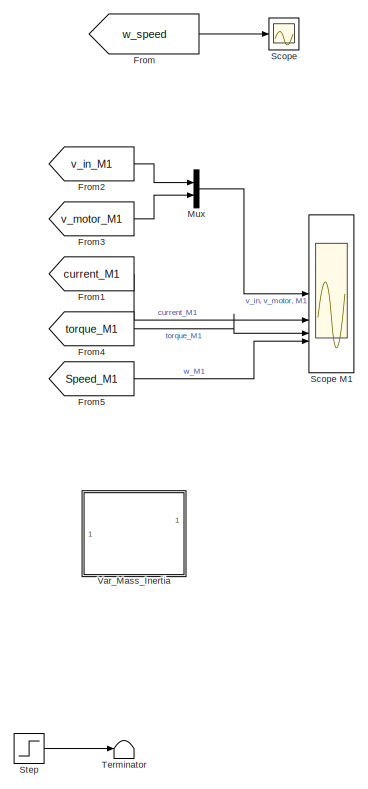
[diagram: root canvas - part 1/2, right side, full height]
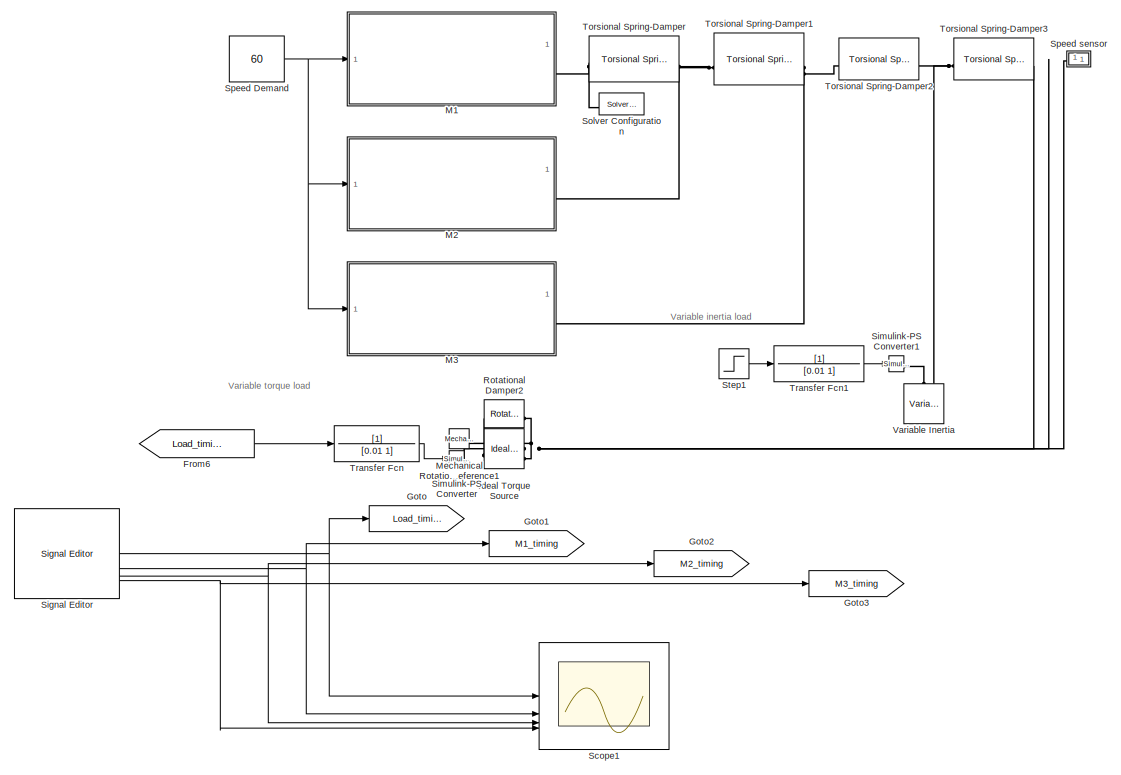
[diagram: root canvas - part 2/2, left side, full height]
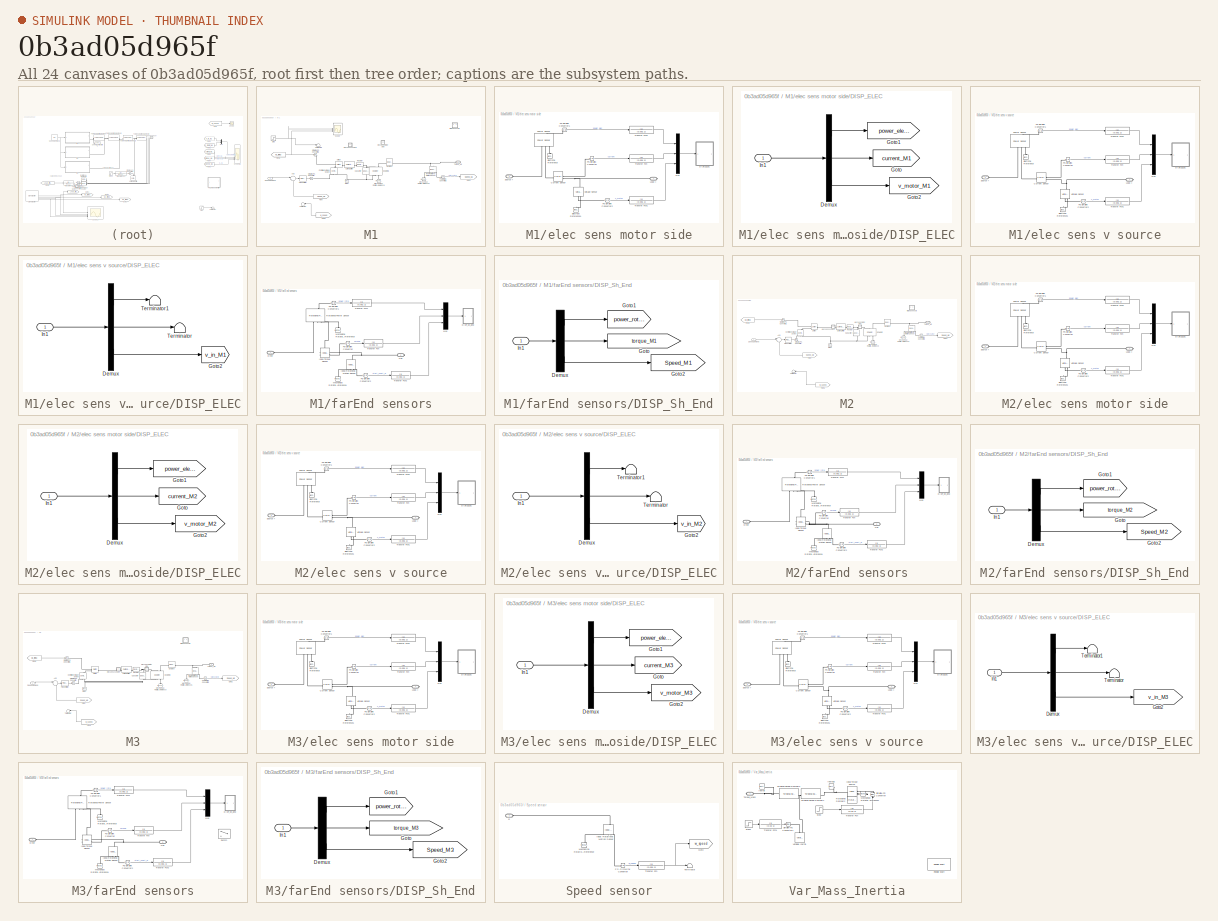
[diagram: thumbnail index - all 24 canvases of the model, root first then tree order]
MODEL slx_0b3ad05d965f
KIND model
CONFIG AbsTol = auto
CONFIG EnableMultiTasking = off
CONFIG FixedStep = auto
CONFIG InitFcn = %% Tq_comb_timing.slx\n% InitFcn\n%\nspring_stiffness = 1e10;\nviscous_friction_coeff = 10;\ncurrent_limit = 12.5;\n%\ntorque_start_t = 1;\ntorque_fin_val = -45;\n%\ninertia_start_t = 11.5;\ninertia_init_val = 0.1;\ninertia_fin_val  = 0.2;\n%\nM1_start_t = 0;\nM2_start_t = 2;\nM3_start_t = 3;
CONFIG MaxStep = auto
CONFIG MinStep = auto
CONFIG RelTol = 1e-3
CONFIG SampleTimeConstraint = Unconstrained
CONFIG SolverName = daessc
CONFIG StartTime = 0.0
CONFIG StopFcn = disp(['spring_stiffness was       ' num2str(spring_stiffness)])\ndisp('')\ndisp(['viscous_friction_coeff was ' num2str(viscous_friction_coeff)])\ndisp('')
CONFIG StopTime = 5
BLOCK [From] From
  GotoTag = w_speed
  TagVisibility = global
BLOCK [From] From1
  GotoTag = current_M1
  TagVisibility = global
BLOCK [From] From2
  GotoTag = v_in_M1
  TagVisibility = global
BLOCK [From] From3
  GotoTag = v_motor_M1
  TagVisibility = global
BLOCK [From] From4
  Commented = on
  GotoTag = torque_M1
BLOCK [From] From5
  GotoTag = Speed_M1
  TagVisibility = global
BLOCK [From] From6
  GotoTag = Load_timing
  TagVisibility = global
BLOCK [Goto] Goto
  GotoTag = Load_timing
  TagVisibility = global
BLOCK [Goto] Goto1
  GotoTag = M1_timing
  TagVisibility = global
BLOCK [Goto] Goto2
  GotoTag = M2_timing
  TagVisibility = global
BLOCK [Goto] Goto3
  GotoTag = M3_timing
  TagVisibility = global
BLOCK [Reference] Ideal Torque Source  REF=fl_lib/Mechanical/Mechanical Sources/Ideal Torque Source
  SourceBlock = fl_lib/Mechanical/Mechanical Sources/Ideal Torque Source
  SourceType = Ideal Torque Source
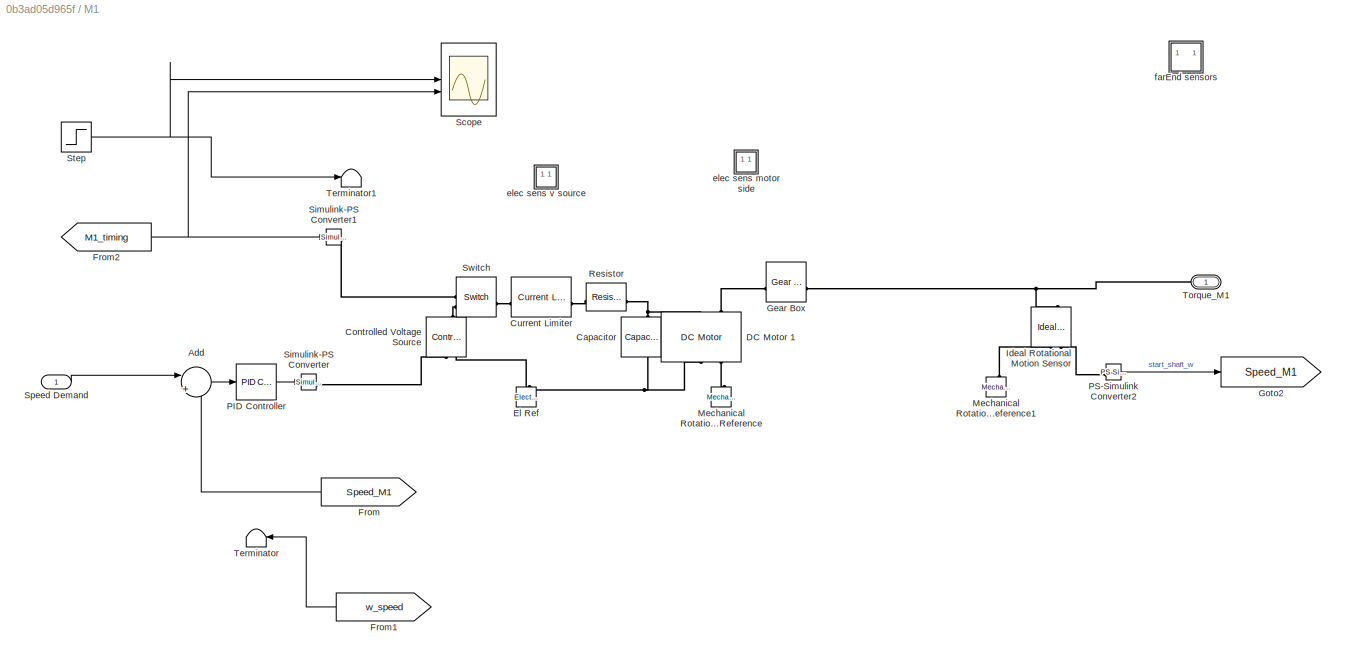
BLOCK [SubSystem] M1
BLOCK [Sum] M1/Add
  Inputs = |+-
BLOCK [Reference] M1/Capacitor  REF=fl_lib/Electrical/Electrical Elements/Capacitor
  NameLocation = left
  SourceBlock = fl_lib/Electrical/Electrical Elements/Capacitor
  SourceType = Capacitor
BLOCK [Reference] M1/Controlled Voltage Source  REF=fl_lib/Electrical/Electrical Sources/Controlled Voltage
Source
  NameLocation = right
  SourceBlock = fl_lib/Electrical/Electrical Sources/Controlled Voltage\nSource
  SourceType = Controlled Voltage\nSource
BLOCK [Reference] M1/Current Limiter  REF=ee_lib/Semiconductors &
Converters/Current Limiter
  SourceBlock = ee_lib/Semiconductors &\nConverters/Current Limiter
  SourceType = Current Limiter
BLOCK [Reference] M1/DC Motor 1  REF=ee_lib/Electromechanical/Brushed Motors/DC Motor
  AttributesFormatString = Maxon:RE_65_388987_48
  NameLocation = right
  SourceBlock = ee_lib/Electromechanical/Brushed Motors/DC Motor
  SourceType = DC Motor
  Tag = {'toolbox/physmod/elec/library/m/ee_lib_parts';'Electromechanical/Brushed_Motors/DC_Motor/Maxon/RE_65_388987_48.xml'}
BLOCK [Reference] M1/El Ref  REF=fl_lib/Electrical/Electrical Elements/Electrical Reference
  NameLocation = right
  SourceBlock = fl_lib/Electrical/Electrical Elements/Electrical Reference
  SourceType = Electrical Reference
BLOCK [From] M1/From
  GotoTag = Speed_M1
  TagVisibility = global
BLOCK [From] M1/From1
  GotoTag = w_speed
  TagVisibility = global
BLOCK [From] M1/From2
  GotoTag = M1_timing
  TagVisibility = global
BLOCK [Reference] M1/Gear Box  REF=fl_lib/Mechanical/Mechanisms/Gear Box
  SourceBlock = fl_lib/Mechanical/Mechanisms/Gear Box
  SourceType = Gear Box
BLOCK [Goto] M1/Goto2
  GotoTag = Speed_M1
  TagVisibility = global
BLOCK [Reference] M1/Ideal Rotational Motion Sensor  REF=fl_lib/Mechanical/Mechanical Sensors/Ideal Rotational
Motion Sensor
  NameLocation = left
  SourceBlock = fl_lib/Mechanical/Mechanical Sensors/Ideal Rotational\nMotion Sensor
  SourceType = Ideal Rotational\nMotion Sensor
BLOCK [Reference] M1/Mechanical Rotational Reference  REF=fl_lib/Mechanical/Rotational Elements/Mechanical
Rotational Reference
  NameLocation = right
  SourceBlock = fl_lib/Mechanical/Rotational Elements/Mechanical\nRotational Reference
  SourceType = Mechanical\nRotational Reference
BLOCK [Reference] M1/Mechanical Rotational Reference1  REF=fl_lib/Mechanical/Rotational Elements/Mechanical
Rotational Reference
  NameLocation = right
  SourceBlock = fl_lib/Mechanical/Rotational Elements/Mechanical\nRotational Reference
  SourceType = Mechanical\nRotational Reference
BLOCK [Reference] M1/PID Controller  REF=slpidlib/PID Controller
  LibrarySourceBlock = simulink/Continuous/PID Controller
  SourceBlock = slpidlib/PID Controller
  SourceType = PID 1dof
BLOCK [Reference] M1/PS-Simulink Converter2  REF=nesl_utility/PS-Simulink
Converter
  SourceBlock = nesl_utility/PS-Simulink\nConverter
  SourceType = PS-Simulink\nConverter
BLOCK [Reference] M1/Resistor  REF=fl_lib/Electrical/Electrical Elements/Resistor
  SourceBlock = fl_lib/Electrical/Electrical Elements/Resistor
  SourceType = Resistor
BLOCK [Scope] M1/Scope
  Floating = off
  NumInputPorts = 2
  ScopeSpecificationString = Simulink.scopes.TimeScopeBlockCfg('CurrentConfiguration', extmgr.ConfigurationSet(extmgr.Configuration('Core','General UI',true),extmgr.Configuration('Core','Source UI',true),extmgr.Configuration('Sources','WiredSimulink',true,'DataLoggingVariableName','ScopeData2'),extmgr.Configuration('Visuals','Time Domain',true,'SerializedDisplays',{struct('MinYLimReal','0.9','MaxYLimReal','1.1','YLabelReal','...<+1958ch>
BLOCK [Reference] M1/Simulink-PS Converter  REF=nesl_utility/Simulink-PS
Converter
  SourceBlock = nesl_utility/Simulink-PS\nConverter
  SourceType = Simulink-PS\nConverter
BLOCK [Reference] M1/Simulink-PS Converter1  REF=nesl_utility/Simulink-PS
Converter
  SourceBlock = nesl_utility/Simulink-PS\nConverter
  SourceType = Simulink-PS\nConverter
BLOCK [Inport] M1/Speed Demand
BLOCK [Step] M1/Step
  SampleTime = 0
  Time = M1_start_t
BLOCK [Reference] M1/Switch  REF=fl_lib/Electrical/Electrical Elements/Switch
  SourceBlock = fl_lib/Electrical/Electrical Elements/Switch
  SourceType = Switch
BLOCK [Terminator] M1/Terminator
  NameLocation = top
BLOCK [Terminator] M1/Terminator1
BLOCK [PMIOPort] M1/Torque_M1
  Side = Right
BLOCK [SubSystem] M1/elec sens motor side
  Commented = on
BLOCK [Reference] M1/elec sens motor side/Current Sensor  REF=fl_lib/Electrical/Electrical Sensors/Current Sensor
  SourceBlock = fl_lib/Electrical/Electrical Sensors/Current Sensor
  SourceType = Current Sensor
BLOCK [SubSystem] M1/elec sens motor side/DISP_ELEC
BLOCK [Demux] M1/elec sens motor side/DISP_ELEC/Demux
  Outputs = 3
BLOCK [Goto] M1/elec sens motor side/DISP_ELEC/Goto
  GotoTag = current_M1
  TagVisibility = global
BLOCK [Goto] M1/elec sens motor side/DISP_ELEC/Goto1
  GotoTag = power_elec_M1
  TagVisibility = global
BLOCK [Goto] M1/elec sens motor side/DISP_ELEC/Goto2
  GotoTag = v_motor_M1
  TagVisibility = global
BLOCK [Inport] M1/elec sens motor side/DISP_ELEC/In1
BLOCK [Reference] M1/elec sens motor side/Electrical Reference  REF=fl_lib/Electrical/Electrical Elements/Electrical Reference
  LibrarySourceBlock = ee_lib/Connectors &\nReferences/Electrical Reference
  NameLocation = right
  SourceBlock = fl_lib/Electrical/Electrical Elements/Electrical Reference
  SourceType = Electrical Reference
BLOCK [Reference] M1/elec sens motor side/Electrical Reference1  REF=fl_lib/Electrical/Electrical Elements/Electrical Reference
  LibrarySourceBlock = ee_lib/Connectors &\nReferences/Electrical Reference
  NameLocation = right
  SourceBlock = fl_lib/Electrical/Electrical Elements/Electrical Reference
  SourceType = Electrical Reference
BLOCK [PMIOPort] M1/elec sens motor side/Load +
  Port = 2
  Side = Right
BLOCK [Mux] M1/elec sens motor side/Mux
  DisplayOption = bar
  Inputs = 3
BLOCK [Reference] M1/elec sens motor side/PS-Simulink Converter  REF=nesl_utility/PS-Simulink
Converter
  SourceBlock = nesl_utility/PS-Simulink\nConverter
  SourceType = PS-Simulink\nConverter
BLOCK [Reference] M1/elec sens motor side/PS-Simulink Converter1  REF=nesl_utility/PS-Simulink
Converter
  SourceBlock = nesl_utility/PS-Simulink\nConverter
  SourceType = PS-Simulink\nConverter
BLOCK [Reference] M1/elec sens motor side/PS-Simulink Converter2  REF=nesl_utility/PS-Simulink
Converter
  SourceBlock = nesl_utility/PS-Simulink\nConverter
  SourceType = PS-Simulink\nConverter
BLOCK [Reference] M1/elec sens motor side/Power Sensor  REF=ee_lib/Sensors &
Transducers/Power Sensor
  NameLocation = right
  SourceBlock = ee_lib/Sensors &\nTransducers/Power Sensor
  SourceType = Power Sensor
BLOCK [PMIOPort] M1/elec sens motor side/Source +
  Side = Left
BLOCK [TransferFcn] M1/elec sens motor side/Transfer Fcn
  Denominator = [0.001 1]
BLOCK [TransferFcn] M1/elec sens motor side/Transfer Fcn1
  Denominator = [0.001 1]
BLOCK [TransferFcn] M1/elec sens motor side/Transfer Fcn2
  Denominator = [0.001 1]
BLOCK [Reference] M1/elec sens motor side/Voltage Sensor  REF=fl_lib/Electrical/Electrical Sensors/Voltage Sensor
  NameLocation = right
  SourceBlock = fl_lib/Electrical/Electrical Sensors/Voltage Sensor
  SourceType = Voltage Sensor
BLOCK [SubSystem] M1/elec sens v source
  Commented = on
BLOCK [Reference] M1/elec sens v source/Current Sensor  REF=fl_lib/Electrical/Electrical Sensors/Current Sensor
  SourceBlock = fl_lib/Electrical/Electrical Sensors/Current Sensor
  SourceType = Current Sensor
BLOCK [SubSystem] M1/elec sens v source/DISP_ELEC
BLOCK [Demux] M1/elec sens v source/DISP_ELEC/Demux
  Outputs = 3
BLOCK [Goto] M1/elec sens v source/DISP_ELEC/Goto2
  GotoTag = v_in_M1
  TagVisibility = global
BLOCK [Inport] M1/elec sens v source/DISP_ELEC/In1
BLOCK [Terminator] M1/elec sens v source/DISP_ELEC/Terminator
BLOCK [Terminator] M1/elec sens v source/DISP_ELEC/Terminator1
BLOCK [Reference] M1/elec sens v source/Electrical Reference  REF=fl_lib/Electrical/Electrical Elements/Electrical Reference
  LibrarySourceBlock = ee_lib/Connectors &\nReferences/Electrical Reference
  NameLocation = right
  SourceBlock = fl_lib/Electrical/Electrical Elements/Electrical Reference
  SourceType = Electrical Reference
BLOCK [Reference] M1/elec sens v source/Electrical Reference1  REF=fl_lib/Electrical/Electrical Elements/Electrical Reference
  LibrarySourceBlock = ee_lib/Connectors &\nReferences/Electrical Reference
  NameLocation = right
  SourceBlock = fl_lib/Electrical/Electrical Elements/Electrical Reference
  SourceType = Electrical Reference
BLOCK [PMIOPort] M1/elec sens v source/Load +
  Port = 2
  Side = Right
BLOCK [Mux] M1/elec sens v source/Mux
  DisplayOption = bar
  Inputs = 3
BLOCK [Reference] M1/elec sens v source/PS-Simulink Converter  REF=nesl_utility/PS-Simulink
Converter
  SourceBlock = nesl_utility/PS-Simulink\nConverter
  SourceType = PS-Simulink\nConverter
BLOCK [Reference] M1/elec sens v source/PS-Simulink Converter1  REF=nesl_utility/PS-Simulink
Converter
  SourceBlock = nesl_utility/PS-Simulink\nConverter
  SourceType = PS-Simulink\nConverter
BLOCK [Reference] M1/elec sens v source/PS-Simulink Converter2  REF=nesl_utility/PS-Simulink
Converter
  SourceBlock = nesl_utility/PS-Simulink\nConverter
  SourceType = PS-Simulink\nConverter
BLOCK [Reference] M1/elec sens v source/Power Sensor  REF=ee_lib/Sensors &
Transducers/Power Sensor
  NameLocation = right
  SourceBlock = ee_lib/Sensors &\nTransducers/Power Sensor
  SourceType = Power Sensor
BLOCK [PMIOPort] M1/elec sens v source/Source +
  Side = Left
BLOCK [TransferFcn] M1/elec sens v source/Transfer Fcn
  Denominator = [0.001 1]
BLOCK [TransferFcn] M1/elec sens v source/Transfer Fcn1
  Denominator = [0.001 1]
BLOCK [TransferFcn] M1/elec sens v source/Transfer Fcn2
  Denominator = [0.001 1]
BLOCK [Reference] M1/elec sens v source/Voltage Sensor  REF=fl_lib/Electrical/Electrical Sensors/Voltage Sensor
  NameLocation = right
  SourceBlock = fl_lib/Electrical/Electrical Sensors/Voltage Sensor
  SourceType = Voltage Sensor
BLOCK [SubSystem] M1/farEnd sensors
  Commented = on
BLOCK [SubSystem] M1/farEnd sensors/DISP_Sh_End
BLOCK [Demux] M1/farEnd sensors/DISP_Sh_End/Demux
  Outputs = 3
BLOCK [Goto] M1/farEnd sensors/DISP_Sh_End/Goto
  GotoTag = torque_M1
  TagVisibility = global
BLOCK [Goto] M1/farEnd sensors/DISP_Sh_End/Goto1
  GotoTag = power_rota_M1
  TagVisibility = global
BLOCK [Goto] M1/farEnd sensors/DISP_Sh_End/Goto2
  GotoTag = Speed_M1
  TagVisibility = global
BLOCK [Inport] M1/farEnd sensors/DISP_Sh_End/In1
BLOCK [PMIOPort] M1/farEnd sensors/Drive
  Side = Left
BLOCK [Reference] M1/farEnd sensors/Ideal Rotational Motion Sensor  REF=fl_lib/Mechanical/Mechanical Sensors/Ideal Rotational
Motion Sensor
  NameLocation = left
  SourceBlock = fl_lib/Mechanical/Mechanical Sensors/Ideal Rotational\nMotion Sensor
  SourceType = Ideal Rotational\nMotion Sensor
BLOCK [Reference] M1/farEnd sensors/Ideal Torque Sensor  REF=fl_lib/Mechanical/Mechanical Sensors/Ideal Torque Sensor
  NameLocation = top
  SourceBlock = fl_lib/Mechanical/Mechanical Sensors/Ideal Torque Sensor
  SourceType = Ideal Torque Sensor
BLOCK [Reference] M1/farEnd sensors/Mechanical Rotational Reference  REF=fl_lib/Mechanical/Rotational Elements/Mechanical
Rotational Reference
  NameLocation = right
  SourceBlock = fl_lib/Mechanical/Rotational Elements/Mechanical\nRotational Reference
  SourceType = Mechanical\nRotational Reference
BLOCK [Reference] M1/farEnd sensors/Mechanical Rotational Reference1  REF=fl_lib/Mechanical/Rotational Elements/Mechanical
Rotational Reference
  NameLocation = right
  SourceBlock = fl_lib/Mechanical/Rotational Elements/Mechanical\nRotational Reference
  SourceType = Mechanical\nRotational Reference
BLOCK [Mux] M1/farEnd sensors/Mux
  DisplayOption = bar
  Inputs = 3
BLOCK [PMIOPort] M1/farEnd sensors/Obj
  Port = 2
  Side = Right
BLOCK [Reference] M1/farEnd sensors/PS-Simulink Converter  REF=nesl_utility/PS-Simulink
Converter
  SourceBlock = nesl_utility/PS-Simulink\nConverter
  SourceType = PS-Simulink\nConverter
BLOCK [Reference] M1/farEnd sensors/PS-Simulink Converter1  REF=nesl_utility/PS-Simulink
Converter
  SourceBlock = nesl_utility/PS-Simulink\nConverter
  SourceType = PS-Simulink\nConverter
BLOCK [Reference] M1/farEnd sensors/PS-Simulink Converter2  REF=nesl_utility/PS-Simulink
Converter
  SourceBlock = nesl_utility/PS-Simulink\nConverter
  SourceType = PS-Simulink\nConverter
BLOCK [Reference] M1/farEnd sensors/Rotational Power Sensor  REF=sdl_lib/Sensors/Rotational Power
Sensor
  NameLocation = right
  SourceBlock = sdl_lib/Sensors/Rotational Power\nSensor
  SourceType = Rotational Power\nSensor
BLOCK [TransferFcn] M1/farEnd sensors/Transfer Fcn
  Commented = through
  Denominator = [0.001 1]
BLOCK [TransferFcn] M1/farEnd sensors/Transfer Fcn1
  Commented = through
  Denominator = [0.001 1]
BLOCK [TransferFcn] M1/farEnd sensors/Transfer Fcn2
  Commented = through
  Denominator = [0.001 1]
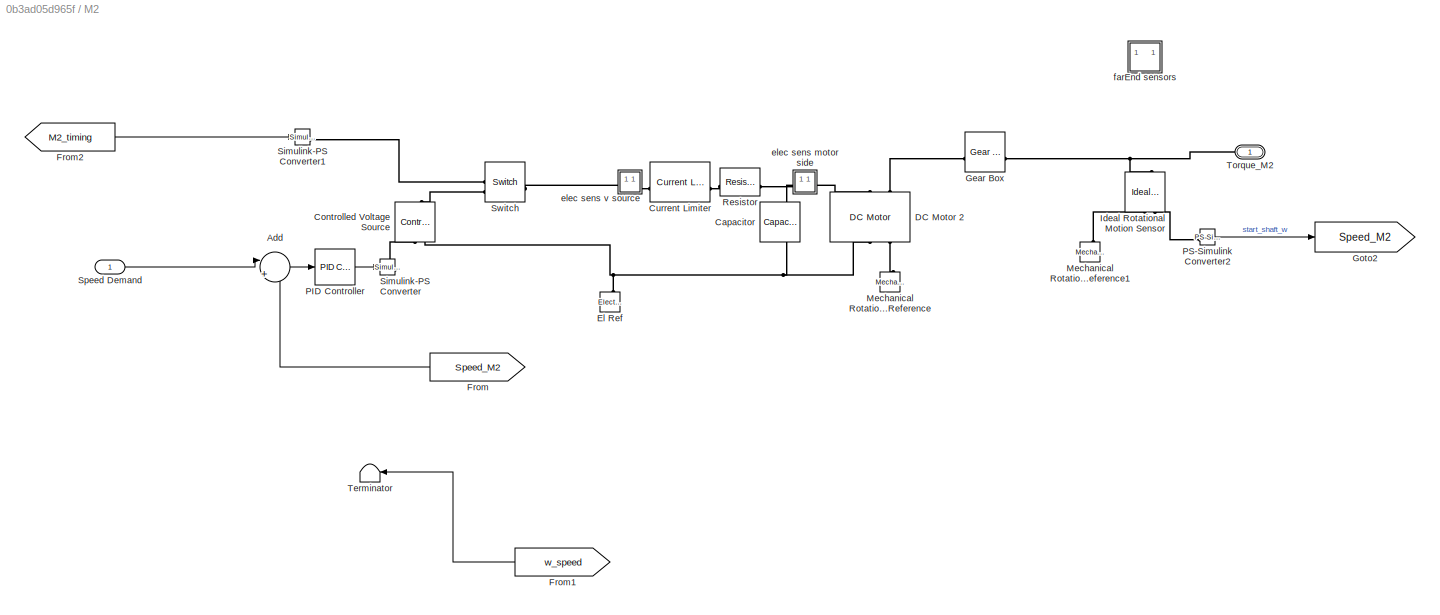
BLOCK [SubSystem] M2
BLOCK [Sum] M2/Add
  Inputs = |+-
BLOCK [Reference] M2/Capacitor  REF=fl_lib/Electrical/Electrical Elements/Capacitor
  NameLocation = left
  SourceBlock = fl_lib/Electrical/Electrical Elements/Capacitor
  SourceType = Capacitor
BLOCK [Reference] M2/Controlled Voltage Source  REF=fl_lib/Electrical/Electrical Sources/Controlled Voltage
Source
  NameLocation = right
  SourceBlock = fl_lib/Electrical/Electrical Sources/Controlled Voltage\nSource
  SourceType = Controlled Voltage\nSource
BLOCK [Reference] M2/Current Limiter  REF=ee_lib/Semiconductors &
Converters/Current Limiter
  SourceBlock = ee_lib/Semiconductors &\nConverters/Current Limiter
  SourceType = Current Limiter
BLOCK [Reference] M2/DC Motor 2  REF=ee_lib/Electromechanical/Brushed Motors/DC Motor
  AttributesFormatString = Maxon:RE_65_388987_48
  NameLocation = right
  SourceBlock = ee_lib/Electromechanical/Brushed Motors/DC Motor
  SourceType = DC Motor
  Tag = {'toolbox/physmod/elec/library/m/ee_lib_parts';'Electromechanical/Brushed_Motors/DC_Motor/Maxon/RE_65_388987_48.xml'}
BLOCK [Reference] M2/El Ref  REF=fl_lib/Electrical/Electrical Elements/Electrical Reference
  NameLocation = right
  SourceBlock = fl_lib/Electrical/Electrical Elements/Electrical Reference
  SourceType = Electrical Reference
BLOCK [From] M2/From
  GotoTag = Speed_M2
  TagVisibility = global
BLOCK [From] M2/From1
  GotoTag = w_speed
  TagVisibility = global
BLOCK [From] M2/From2
  GotoTag = M2_timing
  TagVisibility = global
BLOCK [Reference] M2/Gear Box  REF=fl_lib/Mechanical/Mechanisms/Gear Box
  SourceBlock = fl_lib/Mechanical/Mechanisms/Gear Box
  SourceType = Gear Box
BLOCK [Goto] M2/Goto2
  GotoTag = Speed_M2
  TagVisibility = global
BLOCK [Reference] M2/Ideal Rotational Motion Sensor  REF=fl_lib/Mechanical/Mechanical Sensors/Ideal Rotational
Motion Sensor
  NameLocation = left
  SourceBlock = fl_lib/Mechanical/Mechanical Sensors/Ideal Rotational\nMotion Sensor
  SourceType = Ideal Rotational\nMotion Sensor
BLOCK [Reference] M2/Mechanical Rotational Reference  REF=fl_lib/Mechanical/Rotational Elements/Mechanical
Rotational Reference
  NameLocation = right
  SourceBlock = fl_lib/Mechanical/Rotational Elements/Mechanical\nRotational Reference
  SourceType = Mechanical\nRotational Reference
BLOCK [Reference] M2/Mechanical Rotational Reference1  REF=fl_lib/Mechanical/Rotational Elements/Mechanical
Rotational Reference
  NameLocation = right
  SourceBlock = fl_lib/Mechanical/Rotational Elements/Mechanical\nRotational Reference
  SourceType = Mechanical\nRotational Reference
BLOCK [Reference] M2/PID Controller  REF=slpidlib/PID Controller
  LibrarySourceBlock = simulink/Continuous/PID Controller
  SourceBlock = slpidlib/PID Controller
  SourceType = PID 1dof
BLOCK [Reference] M2/PS-Simulink Converter2  REF=nesl_utility/PS-Simulink
Converter
  SourceBlock = nesl_utility/PS-Simulink\nConverter
  SourceType = PS-Simulink\nConverter
BLOCK [Reference] M2/Resistor  REF=fl_lib/Electrical/Electrical Elements/Resistor
  SourceBlock = fl_lib/Electrical/Electrical Elements/Resistor
  SourceType = Resistor
BLOCK [Reference] M2/Simulink-PS Converter  REF=nesl_utility/Simulink-PS
Converter
  SourceBlock = nesl_utility/Simulink-PS\nConverter
  SourceType = Simulink-PS\nConverter
BLOCK [Reference] M2/Simulink-PS Converter1  REF=nesl_utility/Simulink-PS
Converter
  SourceBlock = nesl_utility/Simulink-PS\nConverter
  SourceType = Simulink-PS\nConverter
BLOCK [Inport] M2/Speed Demand
BLOCK [Reference] M2/Switch  REF=fl_lib/Electrical/Electrical Elements/Switch
  SourceBlock = fl_lib/Electrical/Electrical Elements/Switch
  SourceType = Switch
BLOCK [Terminator] M2/Terminator
  NameLocation = top
BLOCK [PMIOPort] M2/Torque_M2
  Side = Right
BLOCK [SubSystem] M2/elec sens motor side
BLOCK [Reference] M2/elec sens motor side/Current Sensor  REF=fl_lib/Electrical/Electrical Sensors/Current Sensor
  SourceBlock = fl_lib/Electrical/Electrical Sensors/Current Sensor
  SourceType = Current Sensor
BLOCK [SubSystem] M2/elec sens motor side/DISP_ELEC
BLOCK [Demux] M2/elec sens motor side/DISP_ELEC/Demux
  Outputs = 3
BLOCK [Goto] M2/elec sens motor side/DISP_ELEC/Goto
  GotoTag = current_M2
  TagVisibility = global
BLOCK [Goto] M2/elec sens motor side/DISP_ELEC/Goto1
  GotoTag = power_elec_M2
  TagVisibility = global
BLOCK [Goto] M2/elec sens motor side/DISP_ELEC/Goto2
  GotoTag = v_motor_M2
  TagVisibility = global
BLOCK [Inport] M2/elec sens motor side/DISP_ELEC/In1
BLOCK [Reference] M2/elec sens motor side/Electrical Reference  REF=fl_lib/Electrical/Electrical Elements/Electrical Reference
  LibrarySourceBlock = ee_lib/Connectors &\nReferences/Electrical Reference
  NameLocation = right
  SourceBlock = fl_lib/Electrical/Electrical Elements/Electrical Reference
  SourceType = Electrical Reference
BLOCK [Reference] M2/elec sens motor side/Electrical Reference1  REF=fl_lib/Electrical/Electrical Elements/Electrical Reference
  LibrarySourceBlock = ee_lib/Connectors &\nReferences/Electrical Reference
  NameLocation = right
  SourceBlock = fl_lib/Electrical/Electrical Elements/Electrical Reference
  SourceType = Electrical Reference
BLOCK [PMIOPort] M2/elec sens motor side/Load +
  Port = 2
  Side = Right
BLOCK [Mux] M2/elec sens motor side/Mux
  DisplayOption = bar
  Inputs = 3
BLOCK [Reference] M2/elec sens motor side/PS-Simulink Converter  REF=nesl_utility/PS-Simulink
Converter
  SourceBlock = nesl_utility/PS-Simulink\nConverter
  SourceType = PS-Simulink\nConverter
BLOCK [Reference] M2/elec sens motor side/PS-Simulink Converter1  REF=nesl_utility/PS-Simulink
Converter
  SourceBlock = nesl_utility/PS-Simulink\nConverter
  SourceType = PS-Simulink\nConverter
BLOCK [Reference] M2/elec sens motor side/PS-Simulink Converter2  REF=nesl_utility/PS-Simulink
Converter
  SourceBlock = nesl_utility/PS-Simulink\nConverter
  SourceType = PS-Simulink\nConverter
BLOCK [Reference] M2/elec sens motor side/Power Sensor  REF=ee_lib/Sensors &
Transducers/Power Sensor
  NameLocation = right
  SourceBlock = ee_lib/Sensors &\nTransducers/Power Sensor
  SourceType = Power Sensor
BLOCK [PMIOPort] M2/elec sens motor side/Source +
  Side = Left
BLOCK [TransferFcn] M2/elec sens motor side/Transfer Fcn
  Denominator = [0.001 1]
BLOCK [TransferFcn] M2/elec sens motor side/Transfer Fcn1
  Denominator = [0.001 1]
BLOCK [TransferFcn] M2/elec sens motor side/Transfer Fcn2
  Denominator = [0.001 1]
BLOCK [Reference] M2/elec sens motor side/Voltage Sensor  REF=fl_lib/Electrical/Electrical Sensors/Voltage Sensor
  NameLocation = right
  SourceBlock = fl_lib/Electrical/Electrical Sensors/Voltage Sensor
  SourceType = Voltage Sensor
BLOCK [SubSystem] M2/elec sens v source
BLOCK [Reference] M2/elec sens v source/Current Sensor  REF=fl_lib/Electrical/Electrical Sensors/Current Sensor
  SourceBlock = fl_lib/Electrical/Electrical Sensors/Current Sensor
  SourceType = Current Sensor
BLOCK [SubSystem] M2/elec sens v source/DISP_ELEC
BLOCK [Demux] M2/elec sens v source/DISP_ELEC/Demux
  Outputs = 3
BLOCK [Goto] M2/elec sens v source/DISP_ELEC/Goto2
  GotoTag = v_in_M2
  TagVisibility = global
BLOCK [Inport] M2/elec sens v source/DISP_ELEC/In1
BLOCK [Terminator] M2/elec sens v source/DISP_ELEC/Terminator
BLOCK [Terminator] M2/elec sens v source/DISP_ELEC/Terminator1
BLOCK [Reference] M2/elec sens v source/Electrical Reference  REF=fl_lib/Electrical/Electrical Elements/Electrical Reference
  LibrarySourceBlock = ee_lib/Connectors &\nReferences/Electrical Reference
  NameLocation = right
  SourceBlock = fl_lib/Electrical/Electrical Elements/Electrical Reference
  SourceType = Electrical Reference
BLOCK [Reference] M2/elec sens v source/Electrical Reference1  REF=fl_lib/Electrical/Electrical Elements/Electrical Reference
  LibrarySourceBlock = ee_lib/Connectors &\nReferences/Electrical Reference
  NameLocation = right
  SourceBlock = fl_lib/Electrical/Electrical Elements/Electrical Reference
  SourceType = Electrical Reference
BLOCK [PMIOPort] M2/elec sens v source/Load +
  Port = 2
  Side = Right
BLOCK [Mux] M2/elec sens v source/Mux
  DisplayOption = bar
  Inputs = 3
BLOCK [Reference] M2/elec sens v source/PS-Simulink Converter  REF=nesl_utility/PS-Simulink
Converter
  SourceBlock = nesl_utility/PS-Simulink\nConverter
  SourceType = PS-Simulink\nConverter
BLOCK [Reference] M2/elec sens v source/PS-Simulink Converter1  REF=nesl_utility/PS-Simulink
Converter
  SourceBlock = nesl_utility/PS-Simulink\nConverter
  SourceType = PS-Simulink\nConverter
BLOCK [Reference] M2/elec sens v source/PS-Simulink Converter2  REF=nesl_utility/PS-Simulink
Converter
  SourceBlock = nesl_utility/PS-Simulink\nConverter
  SourceType = PS-Simulink\nConverter
BLOCK [Reference] M2/elec sens v source/Power Sensor  REF=ee_lib/Sensors &
Transducers/Power Sensor
  NameLocation = right
  SourceBlock = ee_lib/Sensors &\nTransducers/Power Sensor
  SourceType = Power Sensor
BLOCK [PMIOPort] M2/elec sens v source/Source +
  Side = Left
BLOCK [TransferFcn] M2/elec sens v source/Transfer Fcn
  Denominator = [0.001 1]
BLOCK [TransferFcn] M2/elec sens v source/Transfer Fcn1
  Denominator = [0.001 1]
BLOCK [TransferFcn] M2/elec sens v source/Transfer Fcn2
  Denominator = [0.001 1]
BLOCK [Reference] M2/elec sens v source/Voltage Sensor  REF=fl_lib/Electrical/Electrical Sensors/Voltage Sensor
  NameLocation = right
  SourceBlock = fl_lib/Electrical/Electrical Sensors/Voltage Sensor
  SourceType = Voltage Sensor
BLOCK [SubSystem] M2/farEnd sensors
  Commented = on
BLOCK [SubSystem] M2/farEnd sensors/DISP_Sh_End
BLOCK [Demux] M2/farEnd sensors/DISP_Sh_End/Demux
  Outputs = 3
BLOCK [Goto] M2/farEnd sensors/DISP_Sh_End/Goto
  GotoTag = torque_M2
  TagVisibility = global
BLOCK [Goto] M2/farEnd sensors/DISP_Sh_End/Goto1
  GotoTag = power_rota_M2
  TagVisibility = global
BLOCK [Goto] M2/farEnd sensors/DISP_Sh_End/Goto2
  GotoTag = Speed_M2
  TagVisibility = global
BLOCK [Inport] M2/farEnd sensors/DISP_Sh_End/In1
BLOCK [PMIOPort] M2/farEnd sensors/Drive
  Side = Left
BLOCK [Reference] M2/farEnd sensors/Ideal Rotational Motion Sensor  REF=fl_lib/Mechanical/Mechanical Sensors/Ideal Rotational
Motion Sensor
  NameLocation = left
  SourceBlock = fl_lib/Mechanical/Mechanical Sensors/Ideal Rotational\nMotion Sensor
  SourceType = Ideal Rotational\nMotion Sensor
BLOCK [Reference] M2/farEnd sensors/Ideal Torque Sensor  REF=fl_lib/Mechanical/Mechanical Sensors/Ideal Torque Sensor
  NameLocation = top
  SourceBlock = fl_lib/Mechanical/Mechanical Sensors/Ideal Torque Sensor
  SourceType = Ideal Torque Sensor
BLOCK [Reference] M2/farEnd sensors/Mechanical Rotational Reference  REF=fl_lib/Mechanical/Rotational Elements/Mechanical
Rotational Reference
  NameLocation = right
  SourceBlock = fl_lib/Mechanical/Rotational Elements/Mechanical\nRotational Reference
  SourceType = Mechanical\nRotational Reference
BLOCK [Reference] M2/farEnd sensors/Mechanical Rotational Reference1  REF=fl_lib/Mechanical/Rotational Elements/Mechanical
Rotational Reference
  NameLocation = right
  SourceBlock = fl_lib/Mechanical/Rotational Elements/Mechanical\nRotational Reference
  SourceType = Mechanical\nRotational Reference
BLOCK [Mux] M2/farEnd sensors/Mux
  DisplayOption = bar
  Inputs = 3
BLOCK [PMIOPort] M2/farEnd sensors/Obj
  Port = 2
  Side = Right
BLOCK [Reference] M2/farEnd sensors/PS-Simulink Converter  REF=nesl_utility/PS-Simulink
Converter
  SourceBlock = nesl_utility/PS-Simulink\nConverter
  SourceType = PS-Simulink\nConverter
BLOCK [Reference] M2/farEnd sensors/PS-Simulink Converter1  REF=nesl_utility/PS-Simulink
Converter
  SourceBlock = nesl_utility/PS-Simulink\nConverter
  SourceType = PS-Simulink\nConverter
BLOCK [Reference] M2/farEnd sensors/PS-Simulink Converter2  REF=nesl_utility/PS-Simulink
Converter
  SourceBlock = nesl_utility/PS-Simulink\nConverter
  SourceType = PS-Simulink\nConverter
BLOCK [Reference] M2/farEnd sensors/Rotational Power Sensor  REF=sdl_lib/Sensors/Rotational Power
Sensor
  NameLocation = right
  SourceBlock = sdl_lib/Sensors/Rotational Power\nSensor
  SourceType = Rotational Power\nSensor
BLOCK [TransferFcn] M2/farEnd sensors/Transfer Fcn
  Commented = through
  Denominator = [0.001 1]
BLOCK [TransferFcn] M2/farEnd sensors/Transfer Fcn1
  Commented = through
  Denominator = [0.001 1]
BLOCK [TransferFcn] M2/farEnd sensors/Transfer Fcn2
  Commented = through
  Denominator = [0.001 1]
BLOCK [SubSystem] M3
BLOCK [Sum] M3/Add
  Inputs = |+-
BLOCK [Reference] M3/Capacitor  REF=fl_lib/Electrical/Electrical Elements/Capacitor
  NameLocation = left
  SourceBlock = fl_lib/Electrical/Electrical Elements/Capacitor
  SourceType = Capacitor
BLOCK [Reference] M3/Controlled Voltage Source  REF=fl_lib/Electrical/Electrical Sources/Controlled Voltage
Source
  NameLocation = right
  SourceBlock = fl_lib/Electrical/Electrical Sources/Controlled Voltage\nSource
  SourceType = Controlled Voltage\nSource
BLOCK [Reference] M3/Current Limiter  REF=ee_lib/Semiconductors &
Converters/Current Limiter
  SourceBlock = ee_lib/Semiconductors &\nConverters/Current Limiter
  SourceType = Current Limiter
BLOCK [Reference] M3/DC Motor 3  REF=ee_lib/Electromechanical/Brushed Motors/DC Motor
  AttributesFormatString = Maxon:RE_65_388987_48
  NameLocation = right
  SourceBlock = ee_lib/Electromechanical/Brushed Motors/DC Motor
  SourceType = DC Motor
  Tag = {'toolbox/physmod/elec/library/m/ee_lib_parts';'Electromechanical/Brushed_Motors/DC_Motor/Maxon/RE_65_388987_48.xml'}
BLOCK [Reference] M3/El Ref  REF=fl_lib/Electrical/Electrical Elements/Electrical Reference
  NameLocation = right
  SourceBlock = fl_lib/Electrical/Electrical Elements/Electrical Reference
  SourceType = Electrical Reference
BLOCK [From] M3/From
  GotoTag = Speed_M3
  TagVisibility = global
BLOCK [From] M3/From1
  GotoTag = w_speed
  TagVisibility = global
BLOCK [From] M3/From2
  GotoTag = M3_timing
  TagVisibility = global
BLOCK [Reference] M3/Gear Box  REF=fl_lib/Mechanical/Mechanisms/Gear Box
  SourceBlock = fl_lib/Mechanical/Mechanisms/Gear Box
  SourceType = Gear Box
BLOCK [Goto] M3/Goto2
  GotoTag = Speed_M3
  TagVisibility = global
BLOCK [Reference] M3/Ideal Rotational Motion Sensor  REF=fl_lib/Mechanical/Mechanical Sensors/Ideal Rotational
Motion Sensor
  NameLocation = left
  SourceBlock = fl_lib/Mechanical/Mechanical Sensors/Ideal Rotational\nMotion Sensor
  SourceType = Ideal Rotational\nMotion Sensor
BLOCK [Reference] M3/Mechanical Rotational Reference  REF=fl_lib/Mechanical/Rotational Elements/Mechanical
Rotational Reference
  NameLocation = right
  SourceBlock = fl_lib/Mechanical/Rotational Elements/Mechanical\nRotational Reference
  SourceType = Mechanical\nRotational Reference
BLOCK [Reference] M3/Mechanical Rotational Reference1  REF=fl_lib/Mechanical/Rotational Elements/Mechanical
Rotational Reference
  NameLocation = right
  SourceBlock = fl_lib/Mechanical/Rotational Elements/Mechanical\nRotational Reference
  SourceType = Mechanical\nRotational Reference
BLOCK [Reference] M3/PID Controller  REF=slpidlib/PID Controller
  LibrarySourceBlock = simulink/Continuous/PID Controller
  SourceBlock = slpidlib/PID Controller
  SourceType = PID 1dof
BLOCK [Reference] M3/PS-Simulink Converter2  REF=nesl_utility/PS-Simulink
Converter
  SourceBlock = nesl_utility/PS-Simulink\nConverter
  SourceType = PS-Simulink\nConverter
BLOCK [Reference] M3/Resistor  REF=fl_lib/Electrical/Electrical Elements/Resistor
  SourceBlock = fl_lib/Electrical/Electrical Elements/Resistor
  SourceType = Resistor
BLOCK [Reference] M3/Simulink-PS Converter  REF=nesl_utility/Simulink-PS
Converter
  SourceBlock = nesl_utility/Simulink-PS\nConverter
  SourceType = Simulink-PS\nConverter
BLOCK [Reference] M3/Simulink-PS Converter1  REF=nesl_utility/Simulink-PS
Converter
  SourceBlock = nesl_utility/Simulink-PS\nConverter
  SourceType = Simulink-PS\nConverter
BLOCK [Inport] M3/Speed Demand
BLOCK [Reference] M3/Switch  REF=fl_lib/Electrical/Electrical Elements/Switch
  SourceBlock = fl_lib/Electrical/Electrical Elements/Switch
  SourceType = Switch
BLOCK [Terminator] M3/Terminator
  NameLocation = top
BLOCK [PMIOPort] M3/Torque_M3
  Side = Right
BLOCK [SubSystem] M3/elec sens motor side
BLOCK [Reference] M3/elec sens motor side/Current Sensor  REF=fl_lib/Electrical/Electrical Sensors/Current Sensor
  SourceBlock = fl_lib/Electrical/Electrical Sensors/Current Sensor
  SourceType = Current Sensor
BLOCK [SubSystem] M3/elec sens motor side/DISP_ELEC
BLOCK [Demux] M3/elec sens motor side/DISP_ELEC/Demux
  Outputs = 3
BLOCK [Goto] M3/elec sens motor side/DISP_ELEC/Goto
  GotoTag = current_M3
  TagVisibility = global
BLOCK [Goto] M3/elec sens motor side/DISP_ELEC/Goto1
  GotoTag = power_elec_M3
  TagVisibility = global
BLOCK [Goto] M3/elec sens motor side/DISP_ELEC/Goto2
  GotoTag = v_motor_M3
  TagVisibility = global
BLOCK [Inport] M3/elec sens motor side/DISP_ELEC/In1
BLOCK [Reference] M3/elec sens motor side/Electrical Reference  REF=fl_lib/Electrical/Electrical Elements/Electrical Reference
  LibrarySourceBlock = ee_lib/Connectors &\nReferences/Electrical Reference
  NameLocation = right
  SourceBlock = fl_lib/Electrical/Electrical Elements/Electrical Reference
  SourceType = Electrical Reference
BLOCK [Reference] M3/elec sens motor side/Electrical Reference1  REF=fl_lib/Electrical/Electrical Elements/Electrical Reference
  LibrarySourceBlock = ee_lib/Connectors &\nReferences/Electrical Reference
  NameLocation = right
  SourceBlock = fl_lib/Electrical/Electrical Elements/Electrical Reference
  SourceType = Electrical Reference
BLOCK [PMIOPort] M3/elec sens motor side/Load +
  Port = 2
  Side = Right
BLOCK [Mux] M3/elec sens motor side/Mux
  DisplayOption = bar
  Inputs = 3
BLOCK [Reference] M3/elec sens motor side/PS-Simulink Converter  REF=nesl_utility/PS-Simulink
Converter
  SourceBlock = nesl_utility/PS-Simulink\nConverter
  SourceType = PS-Simulink\nConverter
BLOCK [Reference] M3/elec sens motor side/PS-Simulink Converter1  REF=nesl_utility/PS-Simulink
Converter
  SourceBlock = nesl_utility/PS-Simulink\nConverter
  SourceType = PS-Simulink\nConverter
BLOCK [Reference] M3/elec sens motor side/PS-Simulink Converter2  REF=nesl_utility/PS-Simulink
Converter
  SourceBlock = nesl_utility/PS-Simulink\nConverter
  SourceType = PS-Simulink\nConverter
BLOCK [Reference] M3/elec sens motor side/Power Sensor  REF=ee_lib/Sensors &
Transducers/Power Sensor
  NameLocation = right
  SourceBlock = ee_lib/Sensors &\nTransducers/Power Sensor
  SourceType = Power Sensor
BLOCK [PMIOPort] M3/elec sens motor side/Source +
  Side = Left
BLOCK [TransferFcn] M3/elec sens motor side/Transfer Fcn
  Denominator = [0.001 1]
BLOCK [TransferFcn] M3/elec sens motor side/Transfer Fcn1
  Denominator = [0.001 1]
BLOCK [TransferFcn] M3/elec sens motor side/Transfer Fcn2
  Denominator = [0.001 1]
BLOCK [Reference] M3/elec sens motor side/Voltage Sensor  REF=fl_lib/Electrical/Electrical Sensors/Voltage Sensor
  NameLocation = right
  SourceBlock = fl_lib/Electrical/Electrical Sensors/Voltage Sensor
  SourceType = Voltage Sensor
BLOCK [SubSystem] M3/elec sens v source
BLOCK [Reference] M3/elec sens v source/Current Sensor  REF=fl_lib/Electrical/Electrical Sensors/Current Sensor
  SourceBlock = fl_lib/Electrical/Electrical Sensors/Current Sensor
  SourceType = Current Sensor
BLOCK [SubSystem] M3/elec sens v source/DISP_ELEC
BLOCK [Demux] M3/elec sens v source/DISP_ELEC/Demux
  Outputs = 3
BLOCK [Goto] M3/elec sens v source/DISP_ELEC/Goto2
  GotoTag = v_in_M3
  TagVisibility = global
BLOCK [Inport] M3/elec sens v source/DISP_ELEC/In1
BLOCK [Terminator] M3/elec sens v source/DISP_ELEC/Terminator
BLOCK [Terminator] M3/elec sens v source/DISP_ELEC/Terminator1
BLOCK [Reference] M3/elec sens v source/Electrical Reference  REF=fl_lib/Electrical/Electrical Elements/Electrical Reference
  LibrarySourceBlock = ee_lib/Connectors &\nReferences/Electrical Reference
  NameLocation = right
  SourceBlock = fl_lib/Electrical/Electrical Elements/Electrical Reference
  SourceType = Electrical Reference
BLOCK [Reference] M3/elec sens v source/Electrical Reference1  REF=fl_lib/Electrical/Electrical Elements/Electrical Reference
  LibrarySourceBlock = ee_lib/Connectors &\nReferences/Electrical Reference
  NameLocation = right
  SourceBlock = fl_lib/Electrical/Electrical Elements/Electrical Reference
  SourceType = Electrical Reference
BLOCK [PMIOPort] M3/elec sens v source/Load +
  Port = 2
  Side = Right
BLOCK [Mux] M3/elec sens v source/Mux
  DisplayOption = bar
  Inputs = 3
BLOCK [Reference] M3/elec sens v source/PS-Simulink Converter  REF=nesl_utility/PS-Simulink
Converter
  SourceBlock = nesl_utility/PS-Simulink\nConverter
  SourceType = PS-Simulink\nConverter
BLOCK [Reference] M3/elec sens v source/PS-Simulink Converter1  REF=nesl_utility/PS-Simulink
Converter
  SourceBlock = nesl_utility/PS-Simulink\nConverter
  SourceType = PS-Simulink\nConverter
BLOCK [Reference] M3/elec sens v source/PS-Simulink Converter2  REF=nesl_utility/PS-Simulink
Converter
  SourceBlock = nesl_utility/PS-Simulink\nConverter
  SourceType = PS-Simulink\nConverter
BLOCK [Reference] M3/elec sens v source/Power Sensor  REF=ee_lib/Sensors &
Transducers/Power Sensor
  NameLocation = right
  SourceBlock = ee_lib/Sensors &\nTransducers/Power Sensor
  SourceType = Power Sensor
BLOCK [PMIOPort] M3/elec sens v source/Source +
  Side = Left
BLOCK [TransferFcn] M3/elec sens v source/Transfer Fcn
  Denominator = [0.001 1]
BLOCK [TransferFcn] M3/elec sens v source/Transfer Fcn1
  Denominator = [0.001 1]
BLOCK [TransferFcn] M3/elec sens v source/Transfer Fcn2
  Denominator = [0.001 1]
BLOCK [Reference] M3/elec sens v source/Voltage Sensor  REF=fl_lib/Electrical/Electrical Sensors/Voltage Sensor
  NameLocation = right
  SourceBlock = fl_lib/Electrical/Electrical Sensors/Voltage Sensor
  SourceType = Voltage Sensor
BLOCK [SubSystem] M3/farEnd sensors
  Commented = on
BLOCK [SubSystem] M3/farEnd sensors/DISP_Sh_End
BLOCK [Demux] M3/farEnd sensors/DISP_Sh_End/Demux
  Outputs = 3
BLOCK [Goto] M3/farEnd sensors/DISP_Sh_End/Goto
  GotoTag = torque_M3
  TagVisibility = global
BLOCK [Goto] M3/farEnd sensors/DISP_Sh_End/Goto1
  GotoTag = power_rota_M3
  TagVisibility = global
BLOCK [Goto] M3/farEnd sensors/DISP_Sh_End/Goto2
  GotoTag = Speed_M3
  TagVisibility = global
BLOCK [Inport] M3/farEnd sensors/DISP_Sh_End/In1
BLOCK [PMIOPort] M3/farEnd sensors/Drive
  Side = Left
BLOCK [Reference] M3/farEnd sensors/Ideal Rotational Motion Sensor  REF=fl_lib/Mechanical/Mechanical Sensors/Ideal Rotational
Motion Sensor
  NameLocation = left
  SourceBlock = fl_lib/Mechanical/Mechanical Sensors/Ideal Rotational\nMotion Sensor
  SourceType = Ideal Rotational\nMotion Sensor
BLOCK [Reference] M3/farEnd sensors/Ideal Torque Sensor  REF=fl_lib/Mechanical/Mechanical Sensors/Ideal Torque Sensor
  NameLocation = top
  SourceBlock = fl_lib/Mechanical/Mechanical Sensors/Ideal Torque Sensor
  SourceType = Ideal Torque Sensor
BLOCK [Reference] M3/farEnd sensors/Mechanical Rotational Reference  REF=fl_lib/Mechanical/Rotational Elements/Mechanical
Rotational Reference
  NameLocation = right
  SourceBlock = fl_lib/Mechanical/Rotational Elements/Mechanical\nRotational Reference
  SourceType = Mechanical\nRotational Reference
BLOCK [Reference] M3/farEnd sensors/Mechanical Rotational Reference1  REF=fl_lib/Mechanical/Rotational Elements/Mechanical
Rotational Reference
  NameLocation = right
  SourceBlock = fl_lib/Mechanical/Rotational Elements/Mechanical\nRotational Reference
  SourceType = Mechanical\nRotational Reference
BLOCK [Mux] M3/farEnd sensors/Mux
  DisplayOption = bar
  Inputs = 3
BLOCK [PMIOPort] M3/farEnd sensors/Obj
  Port = 2
  Side = Right
BLOCK [Reference] M3/farEnd sensors/PS-Simulink Converter  REF=nesl_utility/PS-Simulink
Converter
  SourceBlock = nesl_utility/PS-Simulink\nConverter
  SourceType = PS-Simulink\nConverter
BLOCK [Reference] M3/farEnd sensors/PS-Simulink Converter1  REF=nesl_utility/PS-Simulink
Converter
  SourceBlock = nesl_utility/PS-Simulink\nConverter
  SourceType = PS-Simulink\nConverter
BLOCK [Reference] M3/farEnd sensors/PS-Simulink Converter2  REF=nesl_utility/PS-Simulink
Converter
  SourceBlock = nesl_utility/PS-Simulink\nConverter
  SourceType = PS-Simulink\nConverter
BLOCK [Reference] M3/farEnd sensors/Rotational Power Sensor  REF=sdl_lib/Sensors/Rotational Power
Sensor
  NameLocation = right
  SourceBlock = sdl_lib/Sensors/Rotational Power\nSensor
  SourceType = Rotational Power\nSensor
BLOCK [Switch] M3/farEnd sensors/Switch
  Criteria = u2 > Threshold
  InputSameDT = off
  SaturateOnIntegerOverflow = off
BLOCK [TransferFcn] M3/farEnd sensors/Transfer Fcn
  Commented = through
  Denominator = [0.001 1]
BLOCK [TransferFcn] M3/farEnd sensors/Transfer Fcn1
  Commented = through
  Denominator = [0.001 1]
BLOCK [TransferFcn] M3/farEnd sensors/Transfer Fcn2
  Commented = through
  Denominator = [0.001 1]
BLOCK [Reference] Mechanical Rotational Reference1  REF=fl_lib/Mechanical/Rotational Elements/Mechanical
Rotational Reference
  SourceBlock = fl_lib/Mechanical/Rotational Elements/Mechanical\nRotational Reference
  SourceType = Mechanical\nRotational Reference
BLOCK [Mux] Mux
  DisplayOption = bar
  Inputs = 2
BLOCK [Reference] Rotational Damper2  REF=fl_lib/Mechanical/Rotational Elements/Rotational Damper
  NameLocation = top
  SourceBlock = fl_lib/Mechanical/Rotational Elements/Rotational Damper
  SourceType = Rotational Damper
BLOCK [Scope] Scope
  Floating = off
  NumInputPorts = 1
  ScopeSpecificationString = Simulink.scopes.TimeScopeBlockCfg('CurrentConfiguration', extmgr.ConfigurationSet(extmgr.Configuration('Core','General UI',true),extmgr.Configuration('Core','Source UI',true),extmgr.Configuration('Sources','WiredSimulink',true),extmgr.Configuration('Visuals','Time Domain',true,'SerializedDisplays',{struct('MinYLimReal','-7.8422','MaxYLimReal','70.5798','YLabelReal','','MinYLimMag','0.00000','MaxYL...<+1389ch>
BLOCK [Scope] Scope M1
  Floating = off
  NumInputPorts = 4
  ScopeSpecificationString = Simulink.scopes.TimeScopeBlockCfg('CurrentConfiguration', extmgr.ConfigurationSet(extmgr.Configuration('Core','General UI',true),extmgr.Configuration('Core','Source UI',true),extmgr.Configuration('Sources','WiredSimulink',true,'DataLoggingVariableName','ScopeData1'),extmgr.Configuration('Visuals','Time Domain',true,'SerializedDisplays',{struct('MinYLimReal','-4.45676','MaxYLimReal','40.11087','YLa...<+3535ch>
BLOCK [Scope] Scope1
  Floating = off
  NumInputPorts = 4
  ScopeSpecificationString = Simulink.scopes.TimeScopeBlockCfg('CurrentConfiguration', extmgr.ConfigurationSet(extmgr.Configuration('Core','General UI',true),extmgr.Configuration('Core','Source UI',true),extmgr.Configuration('Sources','WiredSimulink',true,'DataLoggingVariableName','ScopeData1'),extmgr.Configuration('Visuals','Time Domain',true,'SerializedDisplays',{struct('MinYLimReal','-112.625','MaxYLimReal','13.625','YLabe...<+1453ch>
BLOCK [Reference] Signal Editor  REF=SignalEditorBlockLib/Signal Editor
  LibrarySourceBlock = simulink/Sources/Signal Editor
  SourceBlock = SignalEditorBlockLib/Signal Editor
  SourceType = SignalEditor
  UserDataPersistent = on
BLOCK [Reference] Simulink-PS Converter  REF=nesl_utility/Simulink-PS
Converter
  SourceBlock = nesl_utility/Simulink-PS\nConverter
  SourceType = Simulink-PS\nConverter
BLOCK [Reference] Simulink-PS Converter1  REF=nesl_utility/Simulink-PS
Converter
  SourceBlock = nesl_utility/Simulink-PS\nConverter
  SourceType = Simulink-PS\nConverter
BLOCK [Reference] Solver Configuration  REF=nesl_utility/Solver
Configuration
  SourceBlock = nesl_utility/Solver\nConfiguration
  SourceType = Solver\nConfiguration
BLOCK [Constant] Speed Demand
  Value = 60
BLOCK [SubSystem] Speed sensor
BLOCK [Goto] Speed sensor/Goto
  GotoTag = w_speed
  TagVisibility = global
BLOCK [Reference] Speed sensor/Ideal Rotational Motion Sensor  REF=fl_lib/Mechanical/Mechanical Sensors/Ideal Rotational
Motion Sensor
  NameLocation = left
  SourceBlock = fl_lib/Mechanical/Mechanical Sensors/Ideal Rotational\nMotion Sensor
  SourceType = Ideal Rotational\nMotion Sensor
BLOCK [Reference] Speed sensor/Mechanical Rotational Reference  REF=fl_lib/Mechanical/Rotational Elements/Mechanical
Rotational Reference
  NameLocation = right
  SourceBlock = fl_lib/Mechanical/Rotational Elements/Mechanical\nRotational Reference
  SourceType = Mechanical\nRotational Reference
BLOCK [Reference] Speed sensor/PS-Simulink Converter  REF=nesl_utility/PS-Simulink
Converter
  SourceBlock = nesl_utility/PS-Simulink\nConverter
  SourceType = PS-Simulink\nConverter
BLOCK [PMIOPort] Speed sensor/R
  Side = Left
BLOCK [Terminator] Speed sensor/Terminator
BLOCK [TransferFcn] Speed sensor/Transfer Fcn
  Denominator = [0.001 1]
BLOCK [Step] Step
  After = torque_fin_val
  SampleTime = 0
  Time = torque_start_t
BLOCK [Step] Step1
  After = inertia_fin_val
  Before = inertia_init_val
  SampleTime = 0
  Time = inertia_start_t
BLOCK [Terminator] Terminator
BLOCK [Reference] Torsional Spring-Damper  REF=sdl_lib/Couplings & Drives/Torsional
Spring-Damper
  SourceBlock = sdl_lib/Couplings & Drives/Torsional\nSpring-Damper
  SourceType = Torsional\nSpring-Damper
BLOCK [Reference] Torsional Spring-Damper1  REF=sdl_lib/Couplings & Drives/Torsional
Spring-Damper
  SourceBlock = sdl_lib/Couplings & Drives/Torsional\nSpring-Damper
  SourceType = Torsional\nSpring-Damper
BLOCK [Reference] Torsional Spring-Damper2  REF=sdl_lib/Couplings & Drives/Torsional
Spring-Damper
  SourceBlock = sdl_lib/Couplings & Drives/Torsional\nSpring-Damper
  SourceType = Torsional\nSpring-Damper
BLOCK [Reference] Torsional Spring-Damper3  REF=sdl_lib/Couplings & Drives/Torsional
Spring-Damper
  SourceBlock = sdl_lib/Couplings & Drives/Torsional\nSpring-Damper
  SourceType = Torsional\nSpring-Damper
BLOCK [TransferFcn] Transfer Fcn
  Denominator = [0.01 1]
BLOCK [TransferFcn] Transfer Fcn1
  Denominator = [0.01 1]
BLOCK [SubSystem] Var_Mass_Inertia
  Commented = on
  PortSchema = {"entries":[{"content":{"sides":[{"content":{"connectorIds":[]},"type":"ConnectorPlacement.EquallySpacedRectSide","uuid":"b30f2506-bcca-4d57-8e5b-c12ed5f35a43"},{"content":{"connectorIds":[],"side":"RIGHT"},"type":"ConnectorPlacement.EquallySpacedRectSide","uuid":"07596e1a-3d72-463a-9142-534dc99aa7bb"},{"content":{"connectorIds":[],"side":"TOP"},"type":"ConnectorPlacement.EquallySpacedRectSide","u...<+381ch>
BLOCK [Reference] Var_Mass_Inertia/Flexible Shaft  REF=sdl_lib/Couplings & Drives/Flexible Shaft
  Commented = on
  SourceBlock = sdl_lib/Couplings & Drives/Flexible Shaft
  SourceType = Flexible Shaft
BLOCK [Reference] Var_Mass_Inertia/Ideal Torque Source  REF=fl_lib/Mechanical/Mechanical Sources/Ideal Torque Source
  NameLocation = top
  SourceBlock = fl_lib/Mechanical/Mechanical Sources/Ideal Torque Source
  SourceType = Ideal Torque Source
BLOCK [Reference] Var_Mass_Inertia/Inertia  REF=fl_lib/Mechanical/Rotational Elements/Inertia
  SourceBlock = fl_lib/Mechanical/Rotational Elements/Inertia
  SourceType = Inertia
BLOCK [Reference] Var_Mass_Inertia/Inertia3  REF=fl_lib/Mechanical/Rotational Elements/Inertia
  NameLocation = top
  SourceBlock = fl_lib/Mechanical/Rotational Elements/Inertia
  SourceType = Inertia
BLOCK [Reference] Var_Mass_Inertia/Mechanical Rotational Reference1  REF=fl_lib/Mechanical/Rotational Elements/Mechanical
Rotational Reference
  NameLocation = top
  SourceBlock = fl_lib/Mechanical/Rotational Elements/Mechanical\nRotational Reference
  SourceType = Mechanical\nRotational Reference
BLOCK [Reference] Var_Mass_Inertia/Rotational Damper2  REF=fl_lib/Mechanical/Rotational Elements/Rotational Damper
  SourceBlock = fl_lib/Mechanical/Rotational Elements/Rotational Damper
  SourceType = Rotational Damper
BLOCK [Reference] Var_Mass_Inertia/Simulink-PS Converter  REF=nesl_utility/Simulink-PS
Converter
  NameLocation = right
  SourceBlock = nesl_utility/Simulink-PS\nConverter
  SourceType = Simulink-PS\nConverter
BLOCK [Reference] Var_Mass_Inertia/Simulink-PS Converter1  REF=nesl_utility/Simulink-PS
Converter
  SourceBlock = nesl_utility/Simulink-PS\nConverter
  SourceType = Simulink-PS\nConverter
BLOCK [Step] Var_Mass_Inertia/Step
  After = -25
  SampleTime = 0
BLOCK [Step] Var_Mass_Inertia/Step1
  After = 0.5
  Before = 0.1
  SampleTime = 0
  Time = 2
BLOCK [PMIOPort] Var_Mass_Inertia/Torque_Mass
  Side = Right
BLOCK [Reference] Var_Mass_Inertia/Torsional Spring-Damper1  REF=sdl_lib/Couplings & Drives/Torsional
Spring-Damper
  SourceBlock = sdl_lib/Couplings & Drives/Torsional\nSpring-Damper
  SourceType = Torsional\nSpring-Damper
BLOCK [Reference] Var_Mass_Inertia/Torsional Spring-Damper2  REF=sdl_lib/Couplings & Drives/Torsional
Spring-Damper
  SourceBlock = sdl_lib/Couplings & Drives/Torsional\nSpring-Damper
  SourceType = Torsional\nSpring-Damper
BLOCK [TransferFcn] Var_Mass_Inertia/Transfer Fcn
  Denominator = [0.02 1]
BLOCK [TransferFcn] Var_Mass_Inertia/Transfer Fcn1
  Denominator = [0.02 1]
BLOCK [Reference] Var_Mass_Inertia/Variable Inertia  REF=sdl_lib/Inertias & Loads/Variable Inertia
  NameLocation = right
  SourceBlock = sdl_lib/Inertias & Loads/Variable Inertia
  SourceType = Variable Inertia
BLOCK [Reference] Variable Inertia  REF=sdl_lib/Inertias & Loads/Variable Inertia
  NameLocation = right
  SourceBlock = sdl_lib/Inertias & Loads/Variable Inertia
  SourceType = Variable Inertia
ANNOTATION (root): Variable inertia load
ANNOTATION (root): Variable torque load
LINE From1:1 -> Scope M1:2
LINE From2:1 -> Mux:1
LINE From3:1 -> Mux:2
LINE From4:1 -> Scope M1:3
LINE From5:1 -> Scope M1:4
LINE From6:1 -> Transfer Fcn:1
LINE From:1 -> Scope:1
LINE M1/Add:1 -> M1/PID Controller:1
LINE M1/From1:1 -> M1/Terminator:1
NET M1/From2:1 -> M1/Scope:2, M1/Simulink-PS Converter1:1
LINE M1/From:1 -> M1/Add:2
LINE M1/PID Controller:1 -> M1/Simulink-PS Converter:1
LINE M1/PS-Simulink Converter2:1 -> M1/Goto2:1
LINE M1/Speed Demand:1 -> M1/Add:1
NET M1/Step:1 -> M1/Scope:1, M1/Terminator1:1
LINE M1/elec sens motor side/DISP_ELEC/Demux:1 -> M1/elec sens motor side/DISP_ELEC/Goto1:1
LINE M1/elec sens motor side/DISP_ELEC/Demux:2 -> M1/elec sens motor side/DISP_ELEC/Goto:1
LINE M1/elec sens motor side/DISP_ELEC/Demux:3 -> M1/elec sens motor side/DISP_ELEC/Goto2:1
LINE M1/elec sens motor side/DISP_ELEC/In1:1 -> M1/elec sens motor side/DISP_ELEC/Demux:1
LINE M1/elec sens motor side/Mux:1 -> M1/elec sens motor side/DISP_ELEC:1
LINE M1/elec sens motor side/PS-Simulink Converter1:1 -> M1/elec sens motor side/Transfer Fcn2:1
LINE M1/elec sens motor side/PS-Simulink Converter2:1 -> M1/elec sens motor side/Transfer Fcn1:1
LINE M1/elec sens motor side/PS-Simulink Converter:1 -> M1/elec sens motor side/Transfer Fcn:1
LINE M1/elec sens motor side/Transfer Fcn1:1 -> M1/elec sens motor side/Mux:3
LINE M1/elec sens motor side/Transfer Fcn2:1 -> M1/elec sens motor side/Mux:1
LINE M1/elec sens motor side/Transfer Fcn:1 -> M1/elec sens motor side/Mux:2
LINE M1/elec sens v source/DISP_ELEC/Demux:1 -> M1/elec sens v source/DISP_ELEC/Terminator1:1
LINE M1/elec sens v source/DISP_ELEC/Demux:2 -> M1/elec sens v source/DISP_ELEC/Terminator:1
LINE M1/elec sens v source/DISP_ELEC/Demux:3 -> M1/elec sens v source/DISP_ELEC/Goto2:1
LINE M1/elec sens v source/DISP_ELEC/In1:1 -> M1/elec sens v source/DISP_ELEC/Demux:1
LINE M1/elec sens v source/Mux:1 -> M1/elec sens v source/DISP_ELEC:1
LINE M1/elec sens v source/PS-Simulink Converter1:1 -> M1/elec sens v source/Transfer Fcn2:1
LINE M1/elec sens v source/PS-Simulink Converter2:1 -> M1/elec sens v source/Transfer Fcn1:1
LINE M1/elec sens v source/PS-Simulink Converter:1 -> M1/elec sens v source/Transfer Fcn:1
LINE M1/elec sens v source/Transfer Fcn1:1 -> M1/elec sens v source/Mux:3
LINE M1/elec sens v source/Transfer Fcn2:1 -> M1/elec sens v source/Mux:1
LINE M1/elec sens v source/Transfer Fcn:1 -> M1/elec sens v source/Mux:2
LINE M1/farEnd sensors/DISP_Sh_End/Demux:1 -> M1/farEnd sensors/DISP_Sh_End/Goto1:1
LINE M1/farEnd sensors/DISP_Sh_End/Demux:2 -> M1/farEnd sensors/DISP_Sh_End/Goto:1
LINE M1/farEnd sensors/DISP_Sh_End/Demux:3 -> M1/farEnd sensors/DISP_Sh_End/Goto2:1
LINE M1/farEnd sensors/DISP_Sh_End/In1:1 -> M1/farEnd sensors/DISP_Sh_End/Demux:1
LINE M1/farEnd sensors/Mux:1 -> M1/farEnd sensors/DISP_Sh_End:1
LINE M1/farEnd sensors/PS-Simulink Converter1:1 -> M1/farEnd sensors/Transfer Fcn1:1
LINE M1/farEnd sensors/PS-Simulink Converter2:1 -> M1/farEnd sensors/Transfer Fcn2:1
LINE M1/farEnd sensors/PS-Simulink Converter:1 -> M1/farEnd sensors/Transfer Fcn:1
LINE M1/farEnd sensors/Transfer Fcn1:1 -> M1/farEnd sensors/Mux:1
LINE M1/farEnd sensors/Transfer Fcn2:1 -> M1/farEnd sensors/Mux:3
LINE M1/farEnd sensors/Transfer Fcn:1 -> M1/farEnd sensors/Mux:2
LINE M2/Add:1 -> M2/PID Controller:1
LINE M2/From1:1 -> M2/Terminator:1
LINE M2/From2:1 -> M2/Simulink-PS Converter1:1
LINE M2/From:1 -> M2/Add:2
LINE M2/PID Controller:1 -> M2/Simulink-PS Converter:1
LINE M2/PS-Simulink Converter2:1 -> M2/Goto2:1
LINE M2/Speed Demand:1 -> M2/Add:1
LINE M2/elec sens motor side/DISP_ELEC/Demux:1 -> M2/elec sens motor side/DISP_ELEC/Goto1:1
LINE M2/elec sens motor side/DISP_ELEC/Demux:2 -> M2/elec sens motor side/DISP_ELEC/Goto:1
LINE M2/elec sens motor side/DISP_ELEC/Demux:3 -> M2/elec sens motor side/DISP_ELEC/Goto2:1
LINE M2/elec sens motor side/DISP_ELEC/In1:1 -> M2/elec sens motor side/DISP_ELEC/Demux:1
LINE M2/elec sens motor side/Mux:1 -> M2/elec sens motor side/DISP_ELEC:1
LINE M2/elec sens motor side/PS-Simulink Converter1:1 -> M2/elec sens motor side/Transfer Fcn2:1
LINE M2/elec sens motor side/PS-Simulink Converter2:1 -> M2/elec sens motor side/Transfer Fcn1:1
LINE M2/elec sens motor side/PS-Simulink Converter:1 -> M2/elec sens motor side/Transfer Fcn:1
LINE M2/elec sens motor side/Transfer Fcn1:1 -> M2/elec sens motor side/Mux:3
LINE M2/elec sens motor side/Transfer Fcn2:1 -> M2/elec sens motor side/Mux:1
LINE M2/elec sens motor side/Transfer Fcn:1 -> M2/elec sens motor side/Mux:2
LINE M2/elec sens v source/DISP_ELEC/Demux:1 -> M2/elec sens v source/DISP_ELEC/Terminator1:1
LINE M2/elec sens v source/DISP_ELEC/Demux:2 -> M2/elec sens v source/DISP_ELEC/Terminator:1
LINE M2/elec sens v source/DISP_ELEC/Demux:3 -> M2/elec sens v source/DISP_ELEC/Goto2:1
LINE M2/elec sens v source/DISP_ELEC/In1:1 -> M2/elec sens v source/DISP_ELEC/Demux:1
LINE M2/elec sens v source/Mux:1 -> M2/elec sens v source/DISP_ELEC:1
LINE M2/elec sens v source/PS-Simulink Converter1:1 -> M2/elec sens v source/Transfer Fcn2:1
LINE M2/elec sens v source/PS-Simulink Converter2:1 -> M2/elec sens v source/Transfer Fcn1:1
LINE M2/elec sens v source/PS-Simulink Converter:1 -> M2/elec sens v source/Transfer Fcn:1
LINE M2/elec sens v source/Transfer Fcn1:1 -> M2/elec sens v source/Mux:3
LINE M2/elec sens v source/Transfer Fcn2:1 -> M2/elec sens v source/Mux:1
LINE M2/elec sens v source/Transfer Fcn:1 -> M2/elec sens v source/Mux:2
LINE M2/farEnd sensors/DISP_Sh_End/Demux:1 -> M2/farEnd sensors/DISP_Sh_End/Goto1:1
LINE M2/farEnd sensors/DISP_Sh_End/Demux:2 -> M2/farEnd sensors/DISP_Sh_End/Goto:1
LINE M2/farEnd sensors/DISP_Sh_End/Demux:3 -> M2/farEnd sensors/DISP_Sh_End/Goto2:1
LINE M2/farEnd sensors/DISP_Sh_End/In1:1 -> M2/farEnd sensors/DISP_Sh_End/Demux:1
LINE M2/farEnd sensors/Mux:1 -> M2/farEnd sensors/DISP_Sh_End:1
LINE M2/farEnd sensors/PS-Simulink Converter1:1 -> M2/farEnd sensors/Transfer Fcn1:1
LINE M2/farEnd sensors/PS-Simulink Converter2:1 -> M2/farEnd sensors/Transfer Fcn2:1
LINE M2/farEnd sensors/PS-Simulink Converter:1 -> M2/farEnd sensors/Transfer Fcn:1
LINE M2/farEnd sensors/Transfer Fcn1:1 -> M2/farEnd sensors/Mux:1
LINE M2/farEnd sensors/Transfer Fcn2:1 -> M2/farEnd sensors/Mux:3
LINE M2/farEnd sensors/Transfer Fcn:1 -> M2/farEnd sensors/Mux:2
LINE M3/Add:1 -> M3/PID Controller:1
LINE M3/From1:1 -> M3/Terminator:1
LINE M3/From2:1 -> M3/Simulink-PS Converter1:1
LINE M3/From:1 -> M3/Add:2
LINE M3/PID Controller:1 -> M3/Simulink-PS Converter:1
LINE M3/PS-Simulink Converter2:1 -> M3/Goto2:1
LINE M3/Speed Demand:1 -> M3/Add:1
LINE M3/elec sens motor side/DISP_ELEC/Demux:1 -> M3/elec sens motor side/DISP_ELEC/Goto1:1
LINE M3/elec sens motor side/DISP_ELEC/Demux:2 -> M3/elec sens motor side/DISP_ELEC/Goto:1
LINE M3/elec sens motor side/DISP_ELEC/Demux:3 -> M3/elec sens motor side/DISP_ELEC/Goto2:1
LINE M3/elec sens motor side/DISP_ELEC/In1:1 -> M3/elec sens motor side/DISP_ELEC/Demux:1
LINE M3/elec sens motor side/Mux:1 -> M3/elec sens motor side/DISP_ELEC:1
LINE M3/elec sens motor side/PS-Simulink Converter1:1 -> M3/elec sens motor side/Transfer Fcn2:1
LINE M3/elec sens motor side/PS-Simulink Converter2:1 -> M3/elec sens motor side/Transfer Fcn1:1
LINE M3/elec sens motor side/PS-Simulink Converter:1 -> M3/elec sens motor side/Transfer Fcn:1
LINE M3/elec sens motor side/Transfer Fcn1:1 -> M3/elec sens motor side/Mux:3
LINE M3/elec sens motor side/Transfer Fcn2:1 -> M3/elec sens motor side/Mux:1
LINE M3/elec sens motor side/Transfer Fcn:1 -> M3/elec sens motor side/Mux:2
LINE M3/elec sens v source/DISP_ELEC/Demux:1 -> M3/elec sens v source/DISP_ELEC/Terminator1:1
LINE M3/elec sens v source/DISP_ELEC/Demux:2 -> M3/elec sens v source/DISP_ELEC/Terminator:1
LINE M3/elec sens v source/DISP_ELEC/Demux:3 -> M3/elec sens v source/DISP_ELEC/Goto2:1
LINE M3/elec sens v source/DISP_ELEC/In1:1 -> M3/elec sens v source/DISP_ELEC/Demux:1
LINE M3/elec sens v source/Mux:1 -> M3/elec sens v source/DISP_ELEC:1
LINE M3/elec sens v source/PS-Simulink Converter1:1 -> M3/elec sens v source/Transfer Fcn2:1
LINE M3/elec sens v source/PS-Simulink Converter2:1 -> M3/elec sens v source/Transfer Fcn1:1
LINE M3/elec sens v source/PS-Simulink Converter:1 -> M3/elec sens v source/Transfer Fcn:1
LINE M3/elec sens v source/Transfer Fcn1:1 -> M3/elec sens v source/Mux:3
LINE M3/elec sens v source/Transfer Fcn2:1 -> M3/elec sens v source/Mux:1
LINE M3/elec sens v source/Transfer Fcn:1 -> M3/elec sens v source/Mux:2
LINE M3/farEnd sensors/DISP_Sh_End/Demux:1 -> M3/farEnd sensors/DISP_Sh_End/Goto1:1
LINE M3/farEnd sensors/DISP_Sh_End/Demux:2 -> M3/farEnd sensors/DISP_Sh_End/Goto:1
LINE M3/farEnd sensors/DISP_Sh_End/Demux:3 -> M3/farEnd sensors/DISP_Sh_End/Goto2:1
LINE M3/farEnd sensors/DISP_Sh_End/In1:1 -> M3/farEnd sensors/DISP_Sh_End/Demux:1
LINE M3/farEnd sensors/Mux:1 -> M3/farEnd sensors/DISP_Sh_End:1
LINE M3/farEnd sensors/PS-Simulink Converter1:1 -> M3/farEnd sensors/Transfer Fcn1:1
LINE M3/farEnd sensors/PS-Simulink Converter2:1 -> M3/farEnd sensors/Transfer Fcn2:1
LINE M3/farEnd sensors/PS-Simulink Converter:1 -> M3/farEnd sensors/Transfer Fcn:1
LINE M3/farEnd sensors/Transfer Fcn1:1 -> M3/farEnd sensors/Mux:1
LINE M3/farEnd sensors/Transfer Fcn2:1 -> M3/farEnd sensors/Mux:3
LINE M3/farEnd sensors/Transfer Fcn:1 -> M3/farEnd sensors/Mux:2
LINE Mux:1 -> Scope M1:1
NET Signal Editor:1 -> Goto:1, Scope1:1
NET Signal Editor:2 -> Goto1:1, Scope1:2
NET Signal Editor:3 -> Goto2:1, Scope1:3
NET Signal Editor:4 -> Goto3:1, Scope1:4
NET Speed Demand:1 -> M1:1, M2:1, M3:1
LINE Speed sensor/PS-Simulink Converter:1 -> Speed sensor/Transfer Fcn:1
NET Speed sensor/Transfer Fcn:1 -> Speed sensor/Goto:1, Speed sensor/Terminator:1
LINE Step1:1 -> Transfer Fcn1:1
LINE Step:1 -> Terminator:1
LINE Transfer Fcn1:1 -> Simulink-PS Converter1:1
LINE Transfer Fcn:1 -> Simulink-PS Converter:1
LINE Var_Mass_Inertia/Step1:1 -> Var_Mass_Inertia/Transfer Fcn1:1
LINE Var_Mass_Inertia/Step:1 -> Var_Mass_Inertia/Transfer Fcn:1
LINE Var_Mass_Inertia/Transfer Fcn1:1 -> Var_Mass_Inertia/Simulink-PS Converter1:1
LINE Var_Mass_Inertia/Transfer Fcn:1 -> Var_Mass_Inertia/Simulink-PS Converter:1
PNET net1: Ideal Torque Source:LConn1 -- Rotational Damper2:LConn1 -- Speed sensor:LConn1 -- Torsional Spring-Damper3:RConn1
PLINE Ideal Torque Source:RConn1 -- Simulink-PS Converter:RConn1
PNET net2: Ideal Torque Source:RConn2 -- Mechanical Rotational Reference1:LConn1 -- Rotational Damper2:RConn1
PNET net3: M1/Capacitor:LConn1 -- M1/DC Motor 1:LConn1 -- M1/Resistor:RConn1
PNET net4: M1/Capacitor:RConn1 -- M1/Controlled Voltage Source:RConn2 -- M1/DC Motor 1:RConn1 -- M1/El Ref:LConn1
PLINE M1/Controlled Voltage Source:LConn1 -- M1/Switch:RConn2
PLINE M1/Controlled Voltage Source:RConn1 -- M1/Simulink-PS Converter:RConn1
PLINE M1/Current Limiter:LConn1 -- M1/Switch:LConn1
PLINE M1/Current Limiter:RConn1 -- M1/Resistor:LConn1
PLINE M1/DC Motor 1:LConn2 -- M1/Gear Box:LConn1
PLINE M1/DC Motor 1:RConn2 -- M1/Mechanical Rotational Reference:LConn1
PNET net5: M1/Gear Box:RConn1 -- M1/Ideal Rotational Motion Sensor:LConn1 -- M1/Torque_M1:RConn1
PLINE M1/Ideal Rotational Motion Sensor:RConn1 -- M1/Mechanical Rotational Reference1:LConn1
PLINE M1/Ideal Rotational Motion Sensor:RConn2 -- M1/PS-Simulink Converter2:LConn1
PLINE M1/Simulink-PS Converter1:RConn1 -- M1/Switch:RConn1
PLINE M1/elec sens motor side/Current Sensor:LConn1 -- M1/elec sens motor side/Power Sensor:LConn2
PLINE M1/elec sens motor side/Current Sensor:RConn1 -- M1/elec sens motor side/PS-Simulink Converter:LConn1
PNET net6: M1/elec sens motor side/Current Sensor:RConn2 -- M1/elec sens motor side/Load +:RConn1 -- M1/elec sens motor side/Voltage Sensor:LConn1
PLINE M1/elec sens motor side/Electrical Reference1:LConn1 -- M1/elec sens motor side/Voltage Sensor:RConn2
PLINE M1/elec sens motor side/Electrical Reference:LConn1 -- M1/elec sens motor side/Power Sensor:LConn3
PLINE M1/elec sens motor side/PS-Simulink Converter1:LConn1 -- M1/elec sens motor side/Power Sensor:RConn1
PLINE M1/elec sens motor side/PS-Simulink Converter2:LConn1 -- M1/elec sens motor side/Voltage Sensor:RConn1
PLINE M1/elec sens motor side/Power Sensor:LConn1 -- M1/elec sens motor side/Source +:RConn1
PLINE M1/elec sens v source/Current Sensor:LConn1 -- M1/elec sens v source/Power Sensor:LConn2
PLINE M1/elec sens v source/Current Sensor:RConn1 -- M1/elec sens v source/PS-Simulink Converter:LConn1
PNET net7: M1/elec sens v source/Current Sensor:RConn2 -- M1/elec sens v source/Load +:RConn1 -- M1/elec sens v source/Voltage Sensor:LConn1
PLINE M1/elec sens v source/Electrical Reference1:LConn1 -- M1/elec sens v source/Voltage Sensor:RConn2
PLINE M1/elec sens v source/Electrical Reference:LConn1 -- M1/elec sens v source/Power Sensor:LConn3
PLINE M1/elec sens v source/PS-Simulink Converter1:LConn1 -- M1/elec sens v source/Power Sensor:RConn1
PLINE M1/elec sens v source/PS-Simulink Converter2:LConn1 -- M1/elec sens v source/Voltage Sensor:RConn1
PLINE M1/elec sens v source/Power Sensor:LConn1 -- M1/elec sens v source/Source +:RConn1
PLINE M1/farEnd sensors/Drive:RConn1 -- M1/farEnd sensors/Rotational Power Sensor:LConn1
PNET net8: M1/farEnd sensors/Ideal Rotational Motion Sensor:LConn1 -- M1/farEnd sensors/Ideal Torque Sensor:RConn1 -- M1/farEnd sensors/Obj:RConn1
PLINE M1/farEnd sensors/Ideal Rotational Motion Sensor:RConn1 -- M1/farEnd sensors/Mechanical Rotational Reference1:LConn1
PLINE M1/farEnd sensors/Ideal Rotational Motion Sensor:RConn2 -- M1/farEnd sensors/PS-Simulink Converter2:LConn1
PLINE M1/farEnd sensors/Ideal Torque Sensor:LConn1 -- M1/farEnd sensors/Rotational Power Sensor:LConn2
PLINE M1/farEnd sensors/Ideal Torque Sensor:RConn2 -- M1/farEnd sensors/PS-Simulink Converter:LConn1
PLINE M1/farEnd sensors/Mechanical Rotational Reference:LConn1 -- M1/farEnd sensors/Rotational Power Sensor:LConn3
PLINE M1/farEnd sensors/PS-Simulink Converter1:LConn1 -- M1/farEnd sensors/Rotational Power Sensor:RConn1
PNET net9: M1:RConn1 -- Solver Configuration:RConn1 -- Torsional Spring-Damper:LConn1
PNET net10: M2/Capacitor:LConn1 -- M2/Resistor:RConn1 -- M2/elec sens motor side:LConn1
PNET net11: M2/Capacitor:RConn1 -- M2/Controlled Voltage Source:RConn2 -- M2/DC Motor 2:RConn1 -- M2/El Ref:LConn1
PLINE M2/Controlled Voltage Source:LConn1 -- M2/Switch:RConn2
PLINE M2/Controlled Voltage Source:RConn1 -- M2/Simulink-PS Converter:RConn1
PLINE M2/Current Limiter:LConn1 -- M2/elec sens v source:RConn1
PLINE M2/Current Limiter:RConn1 -- M2/Resistor:LConn1
PLINE M2/DC Motor 2:LConn1 -- M2/elec sens motor side:RConn1
PLINE M2/DC Motor 2:LConn2 -- M2/Gear Box:LConn1
PLINE M2/DC Motor 2:RConn2 -- M2/Mechanical Rotational Reference:LConn1
PNET net12: M2/Gear Box:RConn1 -- M2/Ideal Rotational Motion Sensor:LConn1 -- M2/Torque_M2:RConn1
PLINE M2/Ideal Rotational Motion Sensor:RConn1 -- M2/Mechanical Rotational Reference1:LConn1
PLINE M2/Ideal Rotational Motion Sensor:RConn2 -- M2/PS-Simulink Converter2:LConn1
PLINE M2/Simulink-PS Converter1:RConn1 -- M2/Switch:RConn1
PLINE M2/Switch:LConn1 -- M2/elec sens v source:LConn1
PLINE M2/elec sens motor side/Current Sensor:LConn1 -- M2/elec sens motor side/Power Sensor:LConn2
PLINE M2/elec sens motor side/Current Sensor:RConn1 -- M2/elec sens motor side/PS-Simulink Converter:LConn1
PNET net13: M2/elec sens motor side/Current Sensor:RConn2 -- M2/elec sens motor side/Load +:RConn1 -- M2/elec sens motor side/Voltage Sensor:LConn1
PLINE M2/elec sens motor side/Electrical Reference1:LConn1 -- M2/elec sens motor side/Voltage Sensor:RConn2
PLINE M2/elec sens motor side/Electrical Reference:LConn1 -- M2/elec sens motor side/Power Sensor:LConn3
PLINE M2/elec sens motor side/PS-Simulink Converter1:LConn1 -- M2/elec sens motor side/Power Sensor:RConn1
PLINE M2/elec sens motor side/PS-Simulink Converter2:LConn1 -- M2/elec sens motor side/Voltage Sensor:RConn1
PLINE M2/elec sens motor side/Power Sensor:LConn1 -- M2/elec sens motor side/Source +:RConn1
PLINE M2/elec sens v source/Current Sensor:LConn1 -- M2/elec sens v source/Power Sensor:LConn2
PLINE M2/elec sens v source/Current Sensor:RConn1 -- M2/elec sens v source/PS-Simulink Converter:LConn1
PNET net14: M2/elec sens v source/Current Sensor:RConn2 -- M2/elec sens v source/Load +:RConn1 -- M2/elec sens v source/Voltage Sensor:LConn1
PLINE M2/elec sens v source/Electrical Reference1:LConn1 -- M2/elec sens v source/Voltage Sensor:RConn2
PLINE M2/elec sens v source/Electrical Reference:LConn1 -- M2/elec sens v source/Power Sensor:LConn3
PLINE M2/elec sens v source/PS-Simulink Converter1:LConn1 -- M2/elec sens v source/Power Sensor:RConn1
PLINE M2/elec sens v source/PS-Simulink Converter2:LConn1 -- M2/elec sens v source/Voltage Sensor:RConn1
PLINE M2/elec sens v source/Power Sensor:LConn1 -- M2/elec sens v source/Source +:RConn1
PLINE M2/farEnd sensors/Drive:RConn1 -- M2/farEnd sensors/Rotational Power Sensor:LConn1
PNET net15: M2/farEnd sensors/Ideal Rotational Motion Sensor:LConn1 -- M2/farEnd sensors/Ideal Torque Sensor:RConn1 -- M2/farEnd sensors/Obj:RConn1
PLINE M2/farEnd sensors/Ideal Rotational Motion Sensor:RConn1 -- M2/farEnd sensors/Mechanical Rotational Reference1:LConn1
PLINE M2/farEnd sensors/Ideal Rotational Motion Sensor:RConn2 -- M2/farEnd sensors/PS-Simulink Converter2:LConn1
PLINE M2/farEnd sensors/Ideal Torque Sensor:LConn1 -- M2/farEnd sensors/Rotational Power Sensor:LConn2
PLINE M2/farEnd sensors/Ideal Torque Sensor:RConn2 -- M2/farEnd sensors/PS-Simulink Converter:LConn1
PLINE M2/farEnd sensors/Mechanical Rotational Reference:LConn1 -- M2/farEnd sensors/Rotational Power Sensor:LConn3
PLINE M2/farEnd sensors/PS-Simulink Converter1:LConn1 -- M2/farEnd sensors/Rotational Power Sensor:RConn1
PNET net16: M2:RConn1 -- Torsional Spring-Damper1:LConn1 -- Torsional Spring-Damper:RConn1
PNET net17: M3/Capacitor:LConn1 -- M3/Resistor:RConn1 -- M3/elec sens motor side:LConn1
PNET net18: M3/Capacitor:RConn1 -- M3/Controlled Voltage Source:RConn2 -- M3/DC Motor 3:RConn1 -- M3/El Ref:LConn1
PLINE M3/Controlled Voltage Source:LConn1 -- M3/Switch:RConn2
PLINE M3/Controlled Voltage Source:RConn1 -- M3/Simulink-PS Converter:RConn1
PLINE M3/Current Limiter:LConn1 -- M3/elec sens v source:RConn1
PLINE M3/Current Limiter:RConn1 -- M3/Resistor:LConn1
PLINE M3/DC Motor 3:LConn1 -- M3/elec sens motor side:RConn1
PLINE M3/DC Motor 3:LConn2 -- M3/Gear Box:LConn1
PLINE M3/DC Motor 3:RConn2 -- M3/Mechanical Rotational Reference:LConn1
PNET net19: M3/Gear Box:RConn1 -- M3/Ideal Rotational Motion Sensor:LConn1 -- M3/Torque_M3:RConn1
PLINE M3/Ideal Rotational Motion Sensor:RConn1 -- M3/Mechanical Rotational Reference1:LConn1
PLINE M3/Ideal Rotational Motion Sensor:RConn2 -- M3/PS-Simulink Converter2:LConn1
PLINE M3/Simulink-PS Converter1:RConn1 -- M3/Switch:RConn1
PLINE M3/Switch:LConn1 -- M3/elec sens v source:LConn1
PLINE M3/elec sens motor side/Current Sensor:LConn1 -- M3/elec sens motor side/Power Sensor:LConn2
PLINE M3/elec sens motor side/Current Sensor:RConn1 -- M3/elec sens motor side/PS-Simulink Converter:LConn1
PNET net20: M3/elec sens motor side/Current Sensor:RConn2 -- M3/elec sens motor side/Load +:RConn1 -- M3/elec sens motor side/Voltage Sensor:LConn1
PLINE M3/elec sens motor side/Electrical Reference1:LConn1 -- M3/elec sens motor side/Voltage Sensor:RConn2
PLINE M3/elec sens motor side/Electrical Reference:LConn1 -- M3/elec sens motor side/Power Sensor:LConn3
PLINE M3/elec sens motor side/PS-Simulink Converter1:LConn1 -- M3/elec sens motor side/Power Sensor:RConn1
PLINE M3/elec sens motor side/PS-Simulink Converter2:LConn1 -- M3/elec sens motor side/Voltage Sensor:RConn1
PLINE M3/elec sens motor side/Power Sensor:LConn1 -- M3/elec sens motor side/Source +:RConn1
PLINE M3/elec sens v source/Current Sensor:LConn1 -- M3/elec sens v source/Power Sensor:LConn2
PLINE M3/elec sens v source/Current Sensor:RConn1 -- M3/elec sens v source/PS-Simulink Converter:LConn1
PNET net21: M3/elec sens v source/Current Sensor:RConn2 -- M3/elec sens v source/Load +:RConn1 -- M3/elec sens v source/Voltage Sensor:LConn1
PLINE M3/elec sens v source/Electrical Reference1:LConn1 -- M3/elec sens v source/Voltage Sensor:RConn2
PLINE M3/elec sens v source/Electrical Reference:LConn1 -- M3/elec sens v source/Power Sensor:LConn3
PLINE M3/elec sens v source/PS-Simulink Converter1:LConn1 -- M3/elec sens v source/Power Sensor:RConn1
PLINE M3/elec sens v source/PS-Simulink Converter2:LConn1 -- M3/elec sens v source/Voltage Sensor:RConn1
PLINE M3/elec sens v source/Power Sensor:LConn1 -- M3/elec sens v source/Source +:RConn1
PLINE M3/farEnd sensors/Drive:RConn1 -- M3/farEnd sensors/Rotational Power Sensor:LConn1
PNET net22: M3/farEnd sensors/Ideal Rotational Motion Sensor:LConn1 -- M3/farEnd sensors/Ideal Torque Sensor:RConn1 -- M3/farEnd sensors/Obj:RConn1
PLINE M3/farEnd sensors/Ideal Rotational Motion Sensor:RConn1 -- M3/farEnd sensors/Mechanical Rotational Reference1:LConn1
PLINE M3/farEnd sensors/Ideal Rotational Motion Sensor:RConn2 -- M3/farEnd sensors/PS-Simulink Converter2:LConn1
PLINE M3/farEnd sensors/Ideal Torque Sensor:LConn1 -- M3/farEnd sensors/Rotational Power Sensor:LConn2
PLINE M3/farEnd sensors/Ideal Torque Sensor:RConn2 -- M3/farEnd sensors/PS-Simulink Converter:LConn1
PLINE M3/farEnd sensors/Mechanical Rotational Reference:LConn1 -- M3/farEnd sensors/Rotational Power Sensor:LConn3
PLINE M3/farEnd sensors/PS-Simulink Converter1:LConn1 -- M3/farEnd sensors/Rotational Power Sensor:RConn1
PNET net23: M3:RConn1 -- Torsional Spring-Damper1:RConn1 -- Torsional Spring-Damper2:LConn1
PLINE Simulink-PS Converter1:RConn1 -- Variable Inertia:LConn1
PLINE Speed sensor/Ideal Rotational Motion Sensor:LConn1 -- Speed sensor/R:RConn1
PLINE Speed sensor/Ideal Rotational Motion Sensor:RConn1 -- Speed sensor/Mechanical Rotational Reference:LConn1
PLINE Speed sensor/Ideal Rotational Motion Sensor:RConn2 -- Speed sensor/PS-Simulink Converter:LConn1
PNET net24: Torsional Spring-Damper2:RConn1 -- Torsional Spring-Damper3:LConn1 -- Variable Inertia:LConn2
PNET net25: Var_Mass_Inertia/Ideal Torque Source:LConn1 -- Var_Mass_Inertia/Inertia3:LConn1 -- Var_Mass_Inertia/Rotational Damper2:LConn1 -- Var_Mass_Inertia/Torsional Spring-Damper1:RConn1
PLINE Var_Mass_Inertia/Ideal Torque Source:RConn1 -- Var_Mass_Inertia/Simulink-PS Converter:RConn1
PNET net26: Var_Mass_Inertia/Ideal Torque Source:RConn2 -- Var_Mass_Inertia/Mechanical Rotational Reference1:LConn1 -- Var_Mass_Inertia/Rotational Damper2:RConn1
PNET net27: Var_Mass_Inertia/Inertia:LConn1 -- Var_Mass_Inertia/Torque_Mass:RConn1 -- Var_Mass_Inertia/Torsional Spring-Damper2:LConn1
PLINE Var_Mass_Inertia/Simulink-PS Converter1:RConn1 -- Var_Mass_Inertia/Variable Inertia:LConn1
PNET net28: Var_Mass_Inertia/Torsional Spring-Damper1:LConn1 -- Var_Mass_Inertia/Torsional Spring-Damper2:RConn1 -- Var_Mass_Inertia/Variable Inertia:LConn2
note: NET lines group one-source signal fan-out (src -> all destinations, sorted); 1:1 wires keep LINE; PNET lines group multi-terminal physical nets as a canonical sorted terminal list (undirected conserving connections); 2-terminal nets keep the pairwise PLINE form
